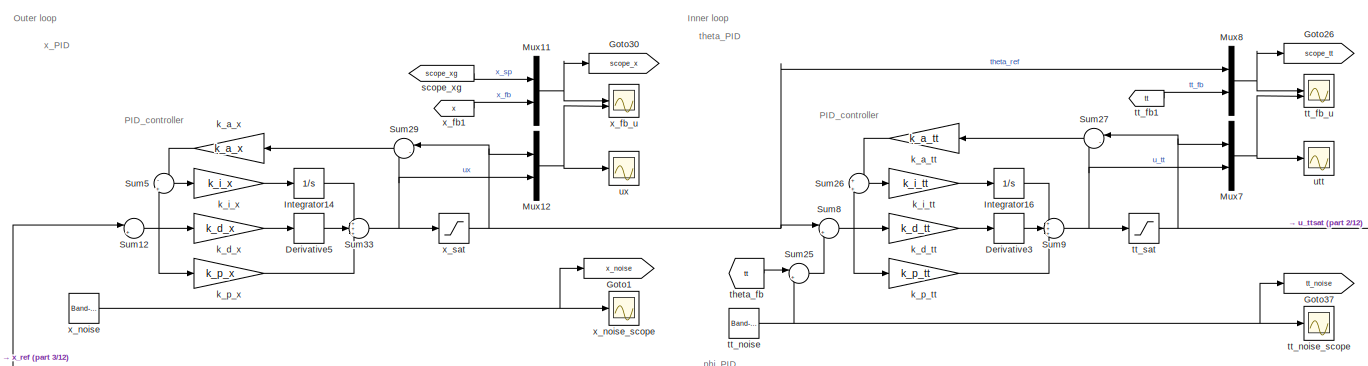
[diagram: root canvas - part 1/12, top center region]
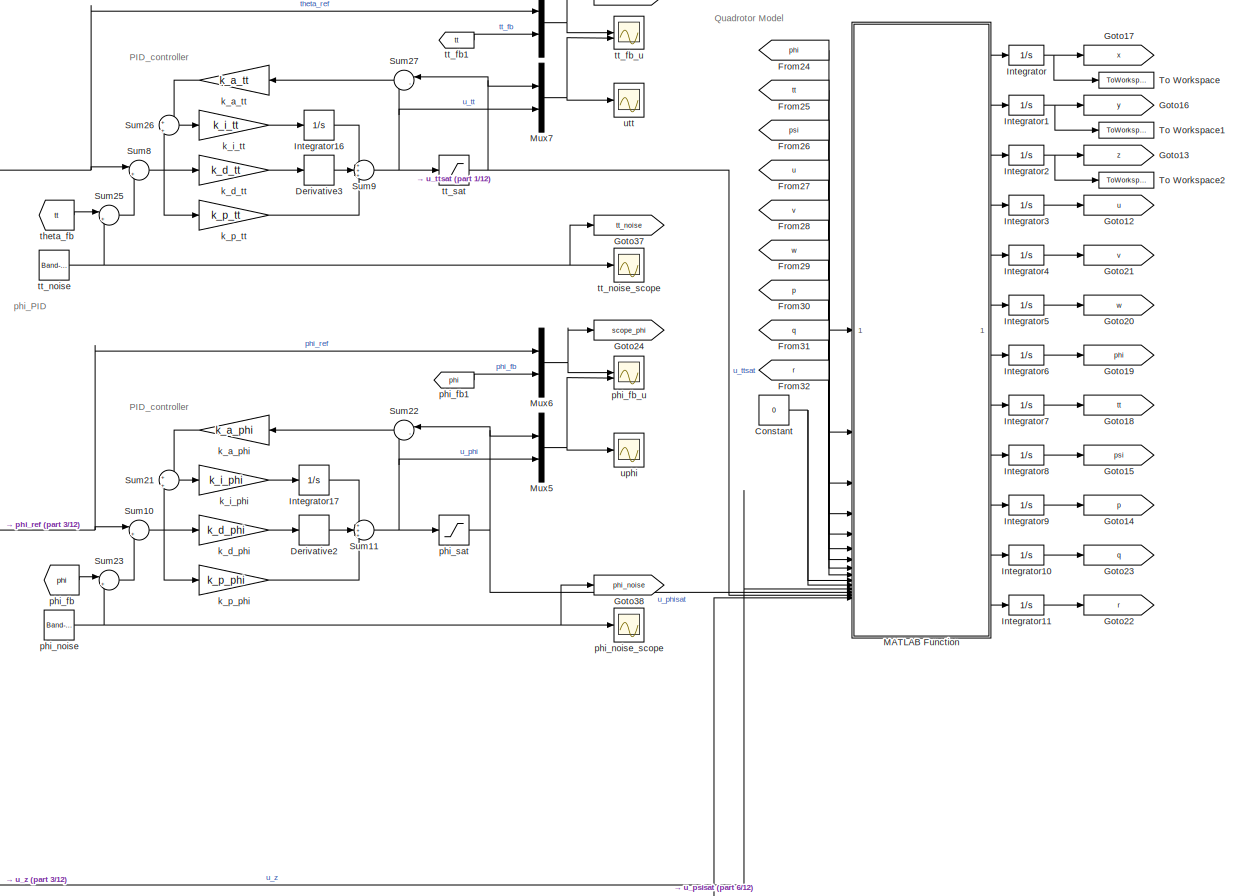
[diagram: root canvas - part 2/12, top center region]
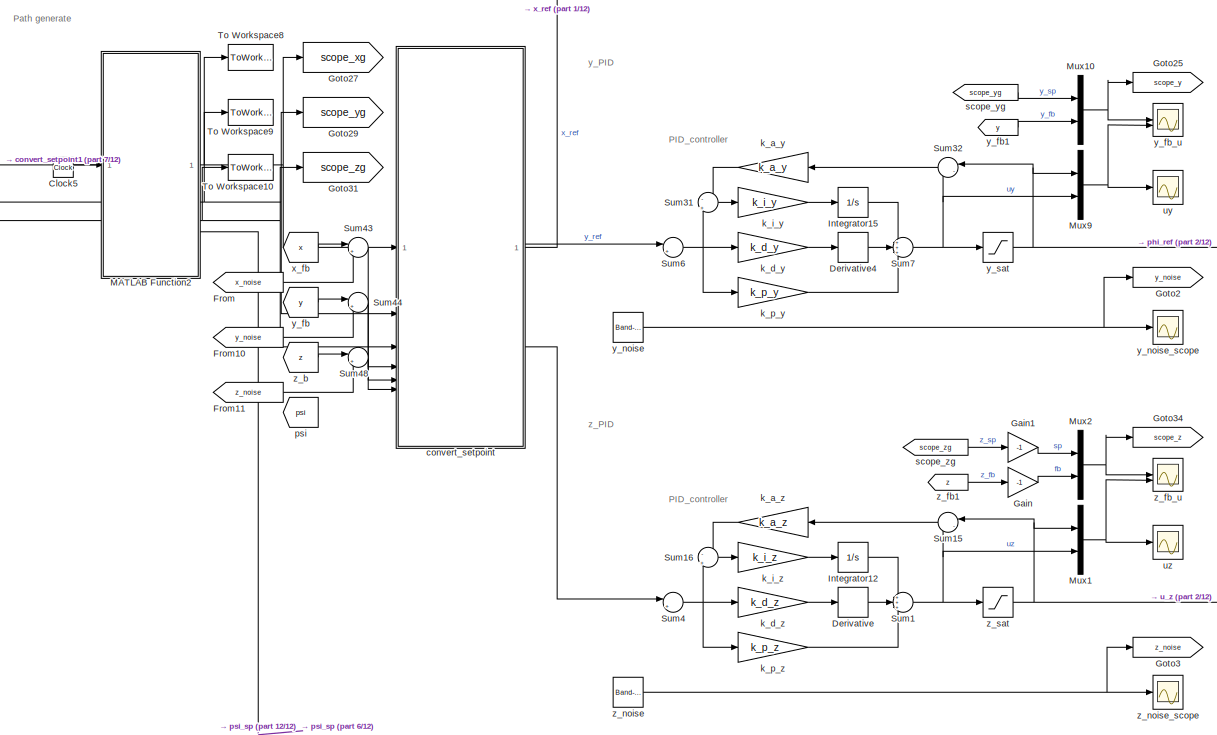
[diagram: root canvas - part 3/12, top left region]
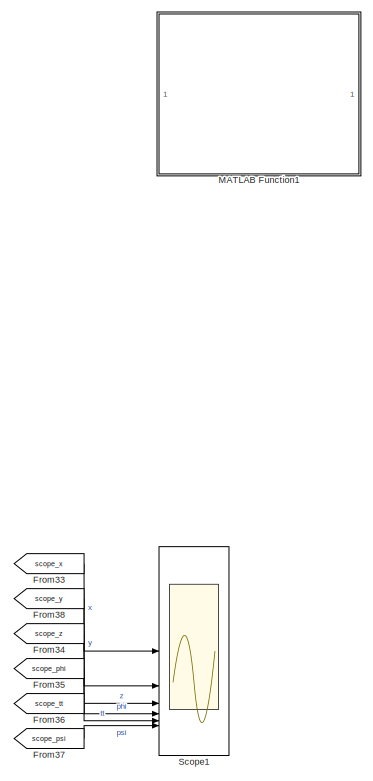
[diagram: root canvas - part 4/12, top right region]
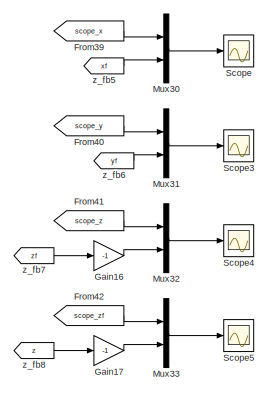
[diagram: root canvas - part 5/12, middle right region]
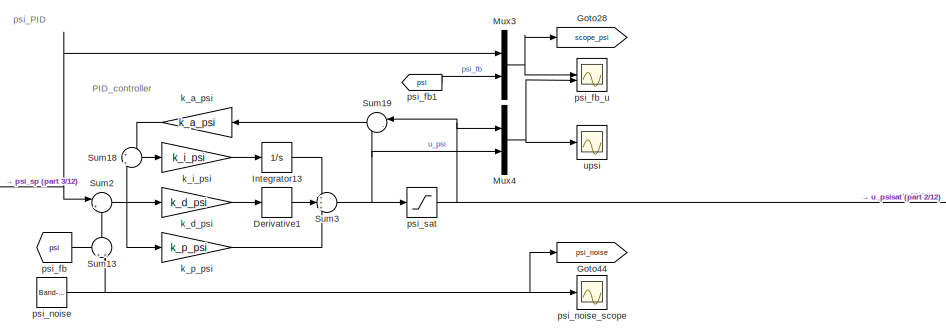
[diagram: root canvas - part 6/12, central region]
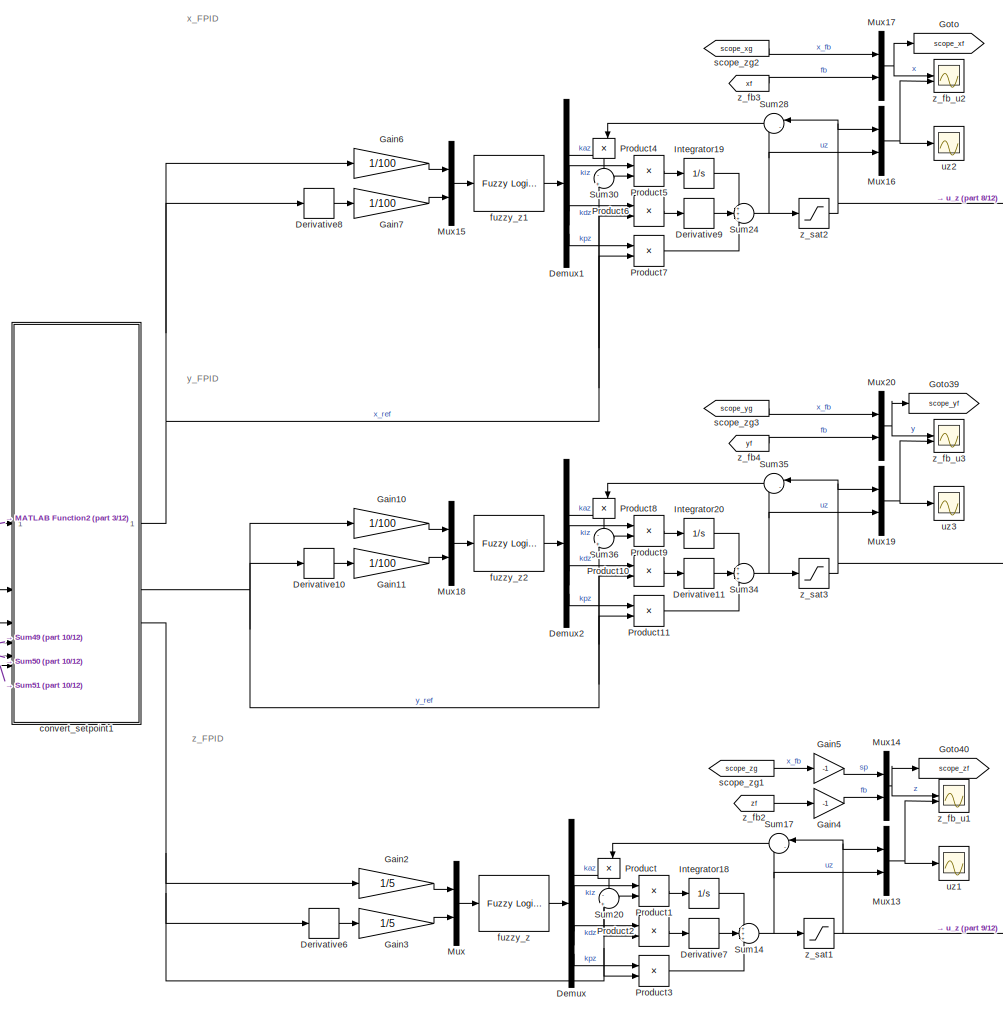
[diagram: root canvas - part 7/12, bottom center region]
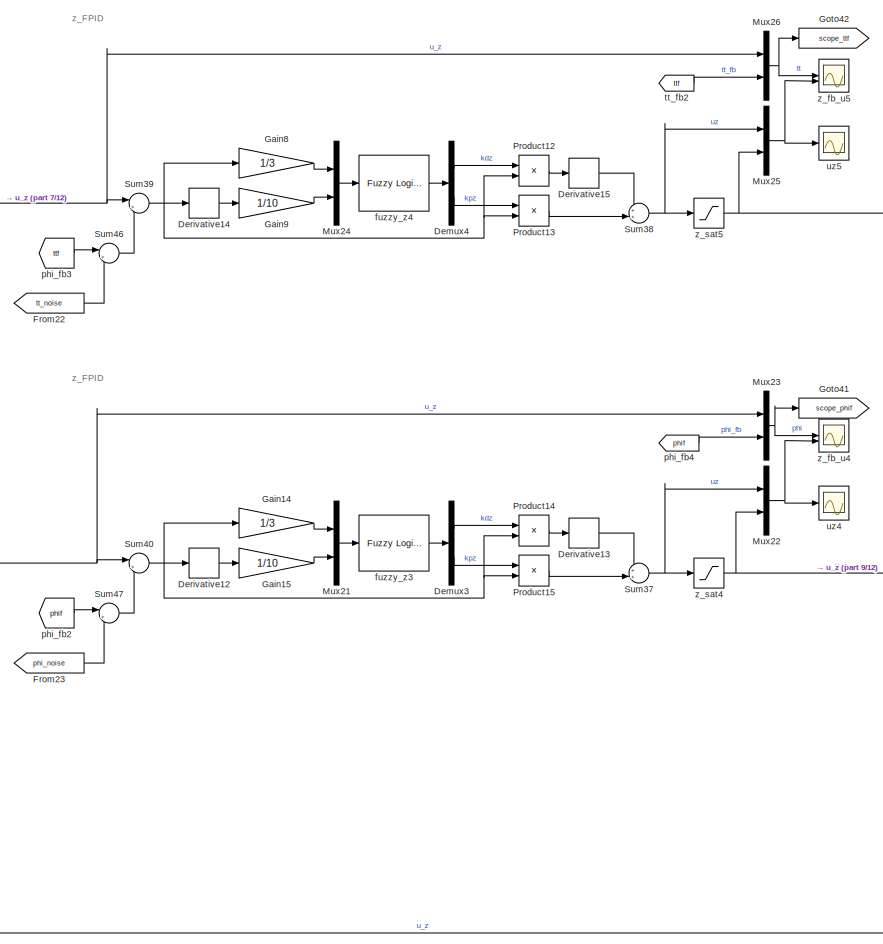
[diagram: root canvas - part 8/12, bottom center region]
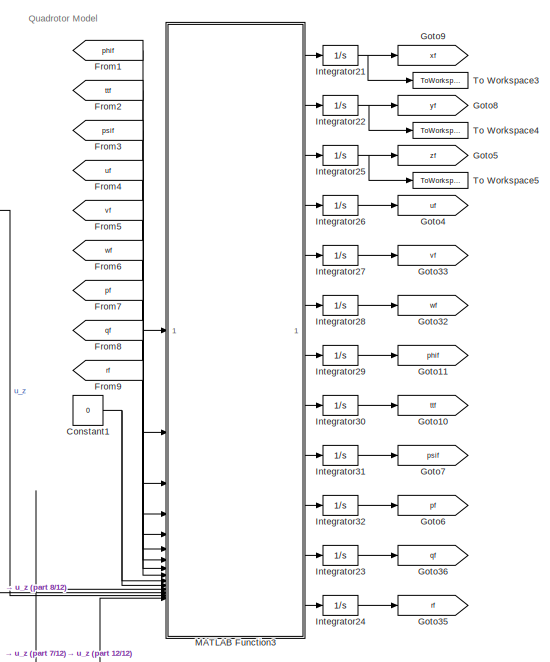
[diagram: root canvas - part 9/12, middle right region]
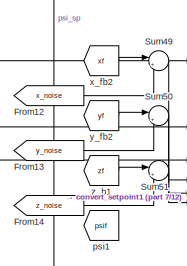
[diagram: root canvas - part 10/12, bottom left region]
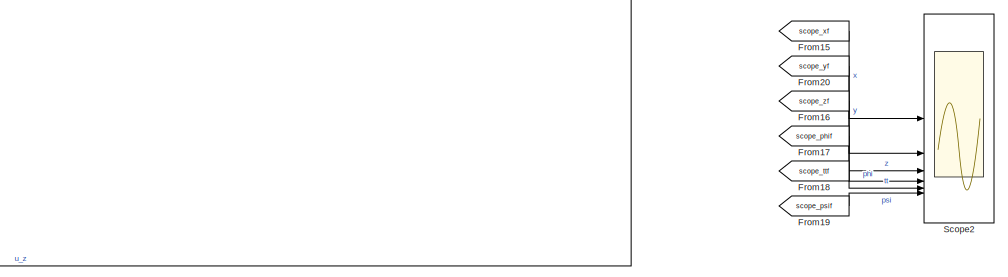
[diagram: root canvas - part 11/12, bottom right region]
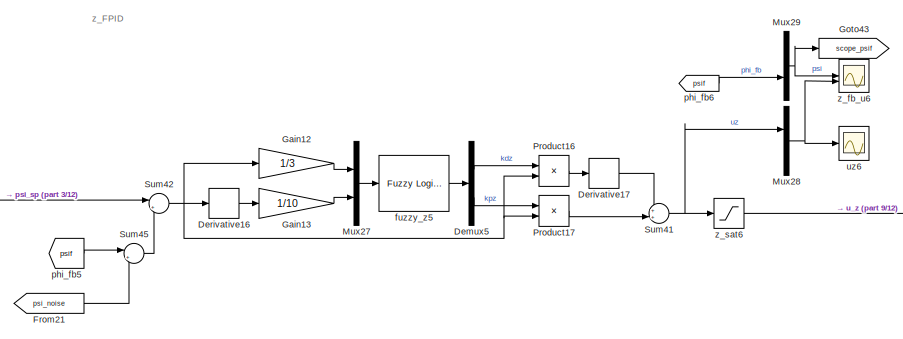
[diagram: root canvas - part 12/12, bottom center region]
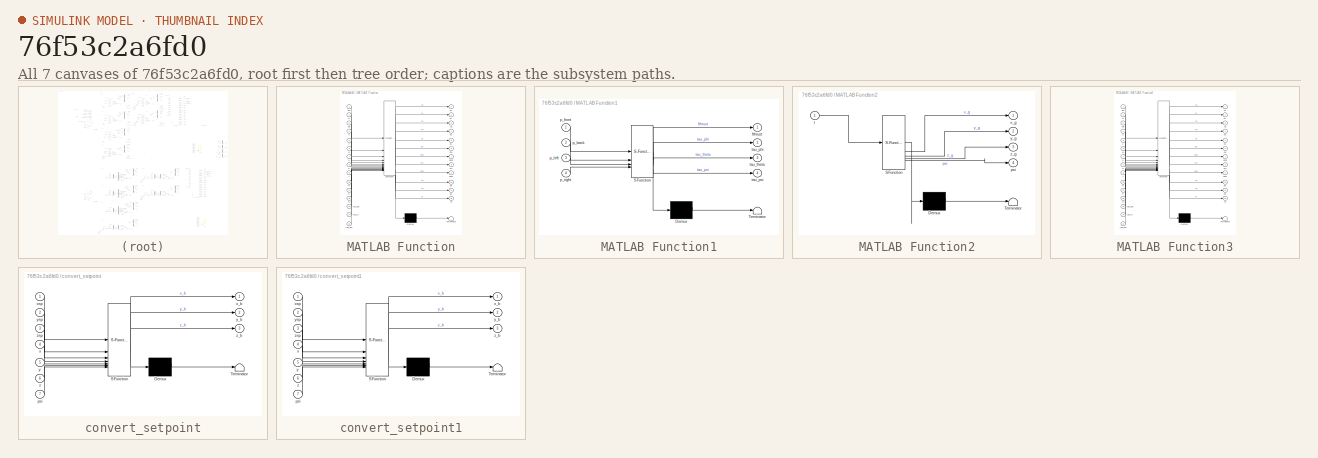
[diagram: thumbnail index - all 7 canvases of the model, root first then tree order]
MODEL slx_76f53c2a6fd0
KIND model
CONFIG AbsTol = auto
CONFIG EnableMultiTasking = off
CONFIG FixedStep = 1e-2
CONFIG InitFcn = close all;\n% % % z\nk_p_z = -4;\nk_i_z = -.5;\nk_d_z = -8;\nk_a_z = -2;\n% % \n% % % psi\nk_p_psi = 5.84;\nk_i_psi = 0;\nk_d_psi = .836;\nk_a_psi = 0;\n% % \n% % phi\nk_p_phi = 1;\nk_d_phi = 0.32;\nk_i_phi = 0;\nk_a_phi = 0;\n%\n% % tt\nk_p_tt = 1;\nk_d_tt = .302;\nk_i_tt = 0;\nk_a_tt = 0;\n%\n% % x\nk_p_x = -5.99;\nk_i_x = -2.8;\nk_d_x = -1.244;\nk_a_x = -7.94;\n%\n% % y\nk_p_y = 5.99;\nk_i_y = 2.8;\nk_d_y = 1.244;\nk_a_y = 7.94;
CONFIG MaxStep = auto
CONFIG MinStep = auto
CONFIG RelTol = 1e-3
CONFIG SampleTimeConstraint = Unconstrained
CONFIG SolverName = FixedStepAuto
CONFIG StartTime = 0.0
CONFIG StopFcn = plot3(x1,y1,-z1,['g','-.'],x_g,y_g,-z_g,['r','-'],x,y,-z,['b','--'],'LineWidth',1.5);\nxlabel('x');\nylabel('y');\nzlabel('z');\ngrid on;\nfigure;\nplot(x1,y1,['g','-.'],x_g,y_g,['r','-'],x,y,['b','--'],'LineWidth',1.5);\nxlabel('x');\nylabel('y');\ngrid on;
CONFIG StopTime = 250
BLOCK [Clock] Clock5
BLOCK [Constant] Constant
  Value = 0
BLOCK [Constant] Constant1
  Value = 0
BLOCK [Demux] Demux
BLOCK [Demux] Demux1
BLOCK [Demux] Demux2
BLOCK [Demux] Demux3
  Outputs = 2
BLOCK [Demux] Demux4
  Outputs = 2
BLOCK [Demux] Demux5
  Outputs = 2
BLOCK [Derivative] Derivative
BLOCK [Derivative] Derivative1
BLOCK [Derivative] Derivative10
BLOCK [Derivative] Derivative11
BLOCK [Derivative] Derivative12
BLOCK [Derivative] Derivative13
BLOCK [Derivative] Derivative14
BLOCK [Derivative] Derivative15
BLOCK [Derivative] Derivative16
BLOCK [Derivative] Derivative17
BLOCK [Derivative] Derivative2
BLOCK [Derivative] Derivative3
BLOCK [Derivative] Derivative4
BLOCK [Derivative] Derivative5
BLOCK [Derivative] Derivative6
BLOCK [Derivative] Derivative7
BLOCK [Derivative] Derivative8
BLOCK [Derivative] Derivative9
BLOCK [From] From
  GotoTag = x_noise
BLOCK [From] From1
  GotoTag = phif
BLOCK [From] From10
  GotoTag = y_noise
BLOCK [From] From11
  GotoTag = z_noise
BLOCK [From] From12
  GotoTag = x_noise
BLOCK [From] From13
  GotoTag = y_noise
BLOCK [From] From14
  GotoTag = z_noise
BLOCK [From] From15
  GotoTag = scope_xf
BLOCK [From] From16
  GotoTag = scope_zf
BLOCK [From] From17
  GotoTag = scope_phif
BLOCK [From] From18
  GotoTag = scope_ttf
BLOCK [From] From19
  GotoTag = scope_psif
BLOCK [From] From2
  GotoTag = ttf
BLOCK [From] From20
  GotoTag = scope_yf
BLOCK [From] From21
  GotoTag = psi_noise
BLOCK [From] From22
  GotoTag = tt_noise
BLOCK [From] From23
  GotoTag = phi_noise
BLOCK [From] From24
  GotoTag = phi
BLOCK [From] From25
  GotoTag = tt
BLOCK [From] From26
  GotoTag = psi
BLOCK [From] From27
  GotoTag = u
BLOCK [From] From28
  GotoTag = v
BLOCK [From] From29
  GotoTag = w
BLOCK [From] From3
  GotoTag = psif
BLOCK [From] From30
  GotoTag = p
BLOCK [From] From31
  GotoTag = q
BLOCK [From] From32
  GotoTag = r
BLOCK [From] From33
  GotoTag = scope_x
BLOCK [From] From34
  GotoTag = scope_z
BLOCK [From] From35
  GotoTag = scope_phi
BLOCK [From] From36
  GotoTag = scope_tt
BLOCK [From] From37
  GotoTag = scope_psi
BLOCK [From] From38
  GotoTag = scope_y
BLOCK [From] From39
  GotoTag = scope_x
BLOCK [From] From4
  GotoTag = uf
BLOCK [From] From40
  GotoTag = scope_y
BLOCK [From] From41
  GotoTag = scope_z
BLOCK [From] From42
  GotoTag = scope_zf
BLOCK [From] From5
  GotoTag = vf
BLOCK [From] From6
  GotoTag = wf
BLOCK [From] From7
  GotoTag = pf
BLOCK [From] From8
  GotoTag = qf
BLOCK [From] From9
  GotoTag = rf
BLOCK [Gain] Gain
  Gain = -1
BLOCK [Gain] Gain1
  Gain = -1
BLOCK [Gain] Gain10
  Gain = 1/100
BLOCK [Gain] Gain11
  Gain = 1/100
BLOCK [Gain] Gain12
  Gain = 1/3
BLOCK [Gain] Gain13
  Gain = 1/10
BLOCK [Gain] Gain14
  Gain = 1/3
BLOCK [Gain] Gain15
  Gain = 1/10
BLOCK [Gain] Gain16
  Gain = -1
BLOCK [Gain] Gain17
  Gain = -1
BLOCK [Gain] Gain2
  Gain = 1/5
BLOCK [Gain] Gain3
  Gain = 1/5
BLOCK [Gain] Gain4
  Gain = -1
BLOCK [Gain] Gain5
  Gain = -1
BLOCK [Gain] Gain6
  Gain = 1/100
BLOCK [Gain] Gain7
  Gain = 1/100
BLOCK [Gain] Gain8
  Gain = 1/3
BLOCK [Gain] Gain9
  Gain = 1/10
BLOCK [Goto] Goto
  GotoTag = scope_xf
BLOCK [Goto] Goto1
  GotoTag = x_noise
BLOCK [Goto] Goto10
  GotoTag = ttf
BLOCK [Goto] Goto11
  GotoTag = phif
BLOCK [Goto] Goto12
  GotoTag = u
BLOCK [Goto] Goto13
  GotoTag = z
BLOCK [Goto] Goto14
  GotoTag = p
BLOCK [Goto] Goto15
  GotoTag = psi
BLOCK [Goto] Goto16
  GotoTag = y
BLOCK [Goto] Goto17
  GotoTag = x
BLOCK [Goto] Goto18
  GotoTag = tt
BLOCK [Goto] Goto19
  GotoTag = phi
BLOCK [Goto] Goto2
  GotoTag = y_noise
BLOCK [Goto] Goto20
  GotoTag = w
BLOCK [Goto] Goto21
  GotoTag = v
BLOCK [Goto] Goto22
  GotoTag = r
BLOCK [Goto] Goto23
  GotoTag = q
BLOCK [Goto] Goto24
  GotoTag = scope_phi
BLOCK [Goto] Goto25
  GotoTag = scope_y
BLOCK [Goto] Goto26
  GotoTag = scope_tt
BLOCK [Goto] Goto27
  GotoTag = scope_xg
BLOCK [Goto] Goto28
  GotoTag = scope_psi
BLOCK [Goto] Goto29
  GotoTag = scope_yg
BLOCK [Goto] Goto3
  GotoTag = z_noise
BLOCK [Goto] Goto30
  GotoTag = scope_x
BLOCK [Goto] Goto31
  GotoTag = scope_zg
BLOCK [Goto] Goto32
  GotoTag = wf
BLOCK [Goto] Goto33
  GotoTag = vf
BLOCK [Goto] Goto34
  GotoTag = scope_z
BLOCK [Goto] Goto35
  GotoTag = rf
BLOCK [Goto] Goto36
  GotoTag = qf
BLOCK [Goto] Goto37
  GotoTag = tt_noise
BLOCK [Goto] Goto38
  GotoTag = phi_noise
BLOCK [Goto] Goto39
  GotoTag = scope_yf
BLOCK [Goto] Goto4
  GotoTag = uf
BLOCK [Goto] Goto40
  GotoTag = scope_zf
BLOCK [Goto] Goto41
  GotoTag = scope_phif
BLOCK [Goto] Goto42
  GotoTag = scope_ttf
BLOCK [Goto] Goto43
  GotoTag = scope_psif
BLOCK [Goto] Goto44
  GotoTag = psi_noise
BLOCK [Goto] Goto5
  GotoTag = zf
BLOCK [Goto] Goto6
  GotoTag = pf
BLOCK [Goto] Goto7
  GotoTag = psif
BLOCK [Goto] Goto8
  GotoTag = yf
BLOCK [Goto] Goto9
  GotoTag = xf
BLOCK [Integrator] Integrator
  LimitOutput = on
  LowerSaturationLimit = -10000
  UpperSaturationLimit = 10000
BLOCK [Integrator] Integrator1
  LimitOutput = on
  LowerSaturationLimit = -10000
  UpperSaturationLimit = 10000
BLOCK [Integrator] Integrator10
  LimitOutput = on
  LowerSaturationLimit = -100
  UpperSaturationLimit = 100
BLOCK [Integrator] Integrator11
  LimitOutput = on
  LowerSaturationLimit = -100
  UpperSaturationLimit = 100
BLOCK [Integrator] Integrator12
  LimitOutput = on
  LowerSaturationLimit = -1000
  UpperSaturationLimit = 1000
BLOCK [Integrator] Integrator13
  LimitOutput = on
  LowerSaturationLimit = -1000
  UpperSaturationLimit = 1000
BLOCK [Integrator] Integrator14
  LimitOutput = on
  LowerSaturationLimit = -1000
  UpperSaturationLimit = 1000
BLOCK [Integrator] Integrator15
  LimitOutput = on
  LowerSaturationLimit = -1000
  UpperSaturationLimit = 1000
BLOCK [Integrator] Integrator16
BLOCK [Integrator] Integrator17
  LimitOutput = on
  LowerSaturationLimit = -1000
  UpperSaturationLimit = 1000
BLOCK [Integrator] Integrator18
  LimitOutput = on
  LowerSaturationLimit = -1000
  UpperSaturationLimit = 1000
BLOCK [Integrator] Integrator19
  LimitOutput = on
  LowerSaturationLimit = -1000
  UpperSaturationLimit = 1000
BLOCK [Integrator] Integrator2
  LimitOutput = on
  LowerSaturationLimit = -1000
  UpperSaturationLimit = 0
BLOCK [Integrator] Integrator20
  LimitOutput = on
  LowerSaturationLimit = -1000
  UpperSaturationLimit = 1000
BLOCK [Integrator] Integrator21
  LimitOutput = on
  LowerSaturationLimit = -10000
  UpperSaturationLimit = 10000
BLOCK [Integrator] Integrator22
  LimitOutput = on
  LowerSaturationLimit = -10000
  UpperSaturationLimit = 10000
BLOCK [Integrator] Integrator23
  LimitOutput = on
  LowerSaturationLimit = -100
  UpperSaturationLimit = 100
BLOCK [Integrator] Integrator24
  LimitOutput = on
  LowerSaturationLimit = -100
  UpperSaturationLimit = 100
BLOCK [Integrator] Integrator25
  LimitOutput = on
  LowerSaturationLimit = -1000
  UpperSaturationLimit = 0
BLOCK [Integrator] Integrator26
  LimitOutput = on
  LowerSaturationLimit = -10000
  UpperSaturationLimit = 10000
BLOCK [Integrator] Integrator27
  LimitOutput = on
  LowerSaturationLimit = -10000
  UpperSaturationLimit = 10000
BLOCK [Integrator] Integrator28
  LimitOutput = on
  LowerSaturationLimit = -10000
  UpperSaturationLimit = 10000
BLOCK [Integrator] Integrator29
  LimitOutput = on
  LowerSaturationLimit = -1000
  UpperSaturationLimit = 1000
BLOCK [Integrator] Integrator3
  LimitOutput = on
  LowerSaturationLimit = -10000
  UpperSaturationLimit = 10000
BLOCK [Integrator] Integrator30
  LimitOutput = on
  LowerSaturationLimit = -1000
  UpperSaturationLimit = 1000
BLOCK [Integrator] Integrator31
  LimitOutput = on
  LowerSaturationLimit = -100
  UpperSaturationLimit = 100
BLOCK [Integrator] Integrator32
  LimitOutput = on
  LowerSaturationLimit = -100
  UpperSaturationLimit = 100
BLOCK [Integrator] Integrator4
  LimitOutput = on
  LowerSaturationLimit = -10000
  UpperSaturationLimit = 10000
BLOCK [Integrator] Integrator5
  LimitOutput = on
  LowerSaturationLimit = -10000
  UpperSaturationLimit = 10000
BLOCK [Integrator] Integrator6
  LimitOutput = on
  LowerSaturationLimit = -1000
  UpperSaturationLimit = 1000
BLOCK [Integrator] Integrator7
  LimitOutput = on
  LowerSaturationLimit = -1000
  UpperSaturationLimit = 1000
BLOCK [Integrator] Integrator8
  LimitOutput = on
  LowerSaturationLimit = -100
  UpperSaturationLimit = 100
BLOCK [Integrator] Integrator9
  LimitOutput = on
  LowerSaturationLimit = -100
  UpperSaturationLimit = 100
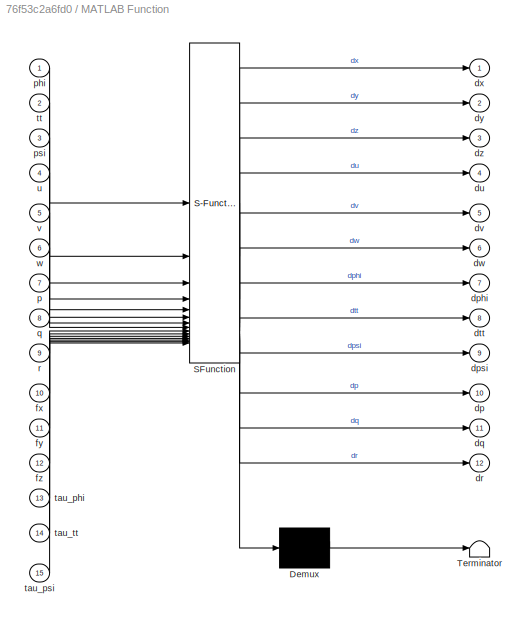
BLOCK [SubSystem] MATLAB Function
  ErrorFcn = Stateflow.Translate.translate
  LibrarySourceBlock = simulink/User-Defined\nFunctions/MATLAB Function
  PermitHierarchicalResolution = ExplicitOnly
  SFBlockType = MATLAB Function
  TreatAsAtomicUnit = on
BLOCK [Demux] MATLAB Function/ Demux 
  Outputs = 1
BLOCK [S-Function] MATLAB Function/ SFunction 
  EnableBusSupport = on
  FunctionName = sf_sfun
  PortCounts = [15 13]
  SFcnIsStateOwnerBlock = off
  SFunctionDeploymentMode = off
  Tag = Stateflow S-Function 2
BLOCK [Terminator] MATLAB Function/ Terminator 
BLOCK [Outport] MATLAB Function/dp
  Port = 10
BLOCK [Outport] MATLAB Function/dphi
  Port = 7
BLOCK [Outport] MATLAB Function/dpsi
  Port = 9
BLOCK [Outport] MATLAB Function/dq
  Port = 11
BLOCK [Outport] MATLAB Function/dr
  Port = 12
BLOCK [Outport] MATLAB Function/dtt
  Port = 8
BLOCK [Outport] MATLAB Function/du
  Port = 4
BLOCK [Outport] MATLAB Function/dv
  Port = 5
BLOCK [Outport] MATLAB Function/dw
  Port = 6
BLOCK [Outport] MATLAB Function/dx
BLOCK [Outport] MATLAB Function/dy
  Port = 2
BLOCK [Outport] MATLAB Function/dz
  Port = 3
BLOCK [Inport] MATLAB Function/fx
  Port = 10
BLOCK [Inport] MATLAB Function/fy
  Port = 11
BLOCK [Inport] MATLAB Function/fz
  Port = 12
BLOCK [Inport] MATLAB Function/p
  Port = 7
BLOCK [Inport] MATLAB Function/phi
BLOCK [Inport] MATLAB Function/psi
  Port = 3
BLOCK [Inport] MATLAB Function/q
  Port = 8
BLOCK [Inport] MATLAB Function/r
  Port = 9
BLOCK [Inport] MATLAB Function/tau_phi
  Port = 13
BLOCK [Inport] MATLAB Function/tau_psi
  Port = 15
BLOCK [Inport] MATLAB Function/tau_tt
  Port = 14
BLOCK [Inport] MATLAB Function/tt
  Port = 2
BLOCK [Inport] MATLAB Function/u
  Port = 4
BLOCK [Inport] MATLAB Function/v
  Port = 5
BLOCK [Inport] MATLAB Function/w
  Port = 6
BLOCK [SubSystem] MATLAB Function1
  Commented = on
  ErrorFcn = Stateflow.Translate.translate
  PermitHierarchicalResolution = ExplicitOnly
  SFBlockType = MATLAB Function
  TreatAsAtomicUnit = on
BLOCK [Demux] MATLAB Function1/ Demux 
  Outputs = 1
BLOCK [S-Function] MATLAB Function1/ SFunction 
  EnableBusSupport = on
  FunctionName = sf_sfun
  PortCounts = [4 5]
  SFcnIsStateOwnerBlock = off
  SFunctionDeploymentMode = off
  Tag = Stateflow S-Function 1
BLOCK [Terminator] MATLAB Function1/ Terminator 
BLOCK [Outport] MATLAB Function1/fthrust
BLOCK [Inport] MATLAB Function1/p_back
  Port = 2
BLOCK [Inport] MATLAB Function1/p_front
BLOCK [Inport] MATLAB Function1/p_left
  Port = 3
BLOCK [Inport] MATLAB Function1/p_right
  Port = 4
BLOCK [Outport] MATLAB Function1/tau_phi
  Port = 2
BLOCK [Outport] MATLAB Function1/tau_psi
  Port = 4
BLOCK [Outport] MATLAB Function1/tau_theta
  Port = 3
BLOCK [SubSystem] MATLAB Function2
  ErrorFcn = Stateflow.Translate.translate
  PermitHierarchicalResolution = ExplicitOnly
  SFBlockType = MATLAB Function
  TreatAsAtomicUnit = on
BLOCK [Demux] MATLAB Function2/ Demux 
  Outputs = 1
BLOCK [S-Function] MATLAB Function2/ SFunction 
  EnableBusSupport = on
  FunctionName = sf_sfun
  PortCounts = [1 5]
  SFcnIsStateOwnerBlock = off
  SFunctionDeploymentMode = off
  Tag = Stateflow S-Function 3
BLOCK [Terminator] MATLAB Function2/ Terminator 
BLOCK [Outport] MATLAB Function2/psi
  Port = 4
BLOCK [Inport] MATLAB Function2/t
BLOCK [Outport] MATLAB Function2/x_g
BLOCK [Outport] MATLAB Function2/y_g
  Port = 2
BLOCK [Outport] MATLAB Function2/z_g
  Port = 3
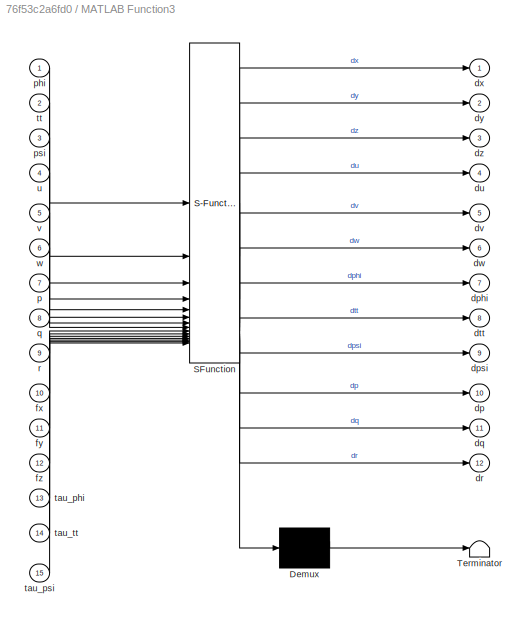
BLOCK [SubSystem] MATLAB Function3
  ErrorFcn = Stateflow.Translate.translate
  LibrarySourceBlock = simulink/User-Defined\nFunctions/MATLAB Function
  PermitHierarchicalResolution = ExplicitOnly
  SFBlockType = MATLAB Function
  TreatAsAtomicUnit = on
BLOCK [Demux] MATLAB Function3/ Demux 
  Outputs = 1
BLOCK [S-Function] MATLAB Function3/ SFunction 
  EnableBusSupport = on
  FunctionName = sf_sfun
  PortCounts = [15 13]
  SFcnIsStateOwnerBlock = off
  SFunctionDeploymentMode = off
  Tag = Stateflow S-Function 5
BLOCK [Terminator] MATLAB Function3/ Terminator 
BLOCK [Outport] MATLAB Function3/dp
  Port = 10
BLOCK [Outport] MATLAB Function3/dphi
  Port = 7
BLOCK [Outport] MATLAB Function3/dpsi
  Port = 9
BLOCK [Outport] MATLAB Function3/dq
  Port = 11
BLOCK [Outport] MATLAB Function3/dr
  Port = 12
BLOCK [Outport] MATLAB Function3/dtt
  Port = 8
BLOCK [Outport] MATLAB Function3/du
  Port = 4
BLOCK [Outport] MATLAB Function3/dv
  Port = 5
BLOCK [Outport] MATLAB Function3/dw
  Port = 6
BLOCK [Outport] MATLAB Function3/dx
BLOCK [Outport] MATLAB Function3/dy
  Port = 2
BLOCK [Outport] MATLAB Function3/dz
  Port = 3
BLOCK [Inport] MATLAB Function3/fx
  Port = 10
BLOCK [Inport] MATLAB Function3/fy
  Port = 11
BLOCK [Inport] MATLAB Function3/fz
  Port = 12
BLOCK [Inport] MATLAB Function3/p
  Port = 7
BLOCK [Inport] MATLAB Function3/phi
BLOCK [Inport] MATLAB Function3/psi
  Port = 3
BLOCK [Inport] MATLAB Function3/q
  Port = 8
BLOCK [Inport] MATLAB Function3/r
  Port = 9
BLOCK [Inport] MATLAB Function3/tau_phi
  Port = 13
BLOCK [Inport] MATLAB Function3/tau_psi
  Port = 15
BLOCK [Inport] MATLAB Function3/tau_tt
  Port = 14
BLOCK [Inport] MATLAB Function3/tt
  Port = 2
BLOCK [Inport] MATLAB Function3/u
  Port = 4
BLOCK [Inport] MATLAB Function3/v
  Port = 5
BLOCK [Inport] MATLAB Function3/w
  Port = 6
BLOCK [Mux] Mux
  DisplayOption = bar
  Inputs = 2
BLOCK [Mux] Mux1
  DisplayOption = bar
  Inputs = 2
  NameLocation = top
BLOCK [Mux] Mux10
  DisplayOption = bar
  Inputs = 2
  NameLocation = top
BLOCK [Mux] Mux11
  DisplayOption = bar
  Inputs = 2
  NameLocation = top
BLOCK [Mux] Mux12
  DisplayOption = bar
  Inputs = 2
  NameLocation = top
BLOCK [Mux] Mux13
  DisplayOption = bar
  Inputs = 2
  NameLocation = top
BLOCK [Mux] Mux14
  DisplayOption = bar
  Inputs = 2
  NameLocation = top
BLOCK [Mux] Mux15
  DisplayOption = bar
  Inputs = 2
BLOCK [Mux] Mux16
  DisplayOption = bar
  Inputs = 2
  NameLocation = top
BLOCK [Mux] Mux17
  DisplayOption = bar
  Inputs = 2
  NameLocation = top
BLOCK [Mux] Mux18
  DisplayOption = bar
  Inputs = 2
BLOCK [Mux] Mux19
  DisplayOption = bar
  Inputs = 2
  NameLocation = top
BLOCK [Mux] Mux2
  DisplayOption = bar
  Inputs = 2
  NameLocation = top
BLOCK [Mux] Mux20
  DisplayOption = bar
  Inputs = 2
  NameLocation = top
BLOCK [Mux] Mux21
  DisplayOption = bar
  Inputs = 2
BLOCK [Mux] Mux22
  DisplayOption = bar
  Inputs = 2
  NameLocation = top
BLOCK [Mux] Mux23
  DisplayOption = bar
  Inputs = 2
  NameLocation = top
BLOCK [Mux] Mux24
  DisplayOption = bar
  Inputs = 2
BLOCK [Mux] Mux25
  DisplayOption = bar
  Inputs = 2
  NameLocation = top
BLOCK [Mux] Mux26
  DisplayOption = bar
  Inputs = 2
  NameLocation = top
BLOCK [Mux] Mux27
  DisplayOption = bar
  Inputs = 2
BLOCK [Mux] Mux28
  DisplayOption = bar
  Inputs = 2
  NameLocation = top
BLOCK [Mux] Mux29
  DisplayOption = bar
  Inputs = 2
  NameLocation = top
BLOCK [Mux] Mux3
  DisplayOption = bar
  Inputs = 2
  NameLocation = top
BLOCK [Mux] Mux30
  DisplayOption = bar
  Inputs = 2
  NameLocation = top
BLOCK [Mux] Mux31
  DisplayOption = bar
  Inputs = 2
  NameLocation = top
BLOCK [Mux] Mux32
  DisplayOption = bar
  Inputs = 2
  NameLocation = top
BLOCK [Mux] Mux33
  DisplayOption = bar
  Inputs = 2
  NameLocation = top
BLOCK [Mux] Mux4
  DisplayOption = bar
  Inputs = 2
  NameLocation = top
BLOCK [Mux] Mux5
  DisplayOption = bar
  Inputs = 2
  NameLocation = top
BLOCK [Mux] Mux6
  DisplayOption = bar
  Inputs = 2
  NameLocation = top
BLOCK [Mux] Mux7
  DisplayOption = bar
  Inputs = 2
  NameLocation = top
BLOCK [Mux] Mux8
  DisplayOption = bar
  Inputs = 2
  NameLocation = top
BLOCK [Mux] Mux9
  DisplayOption = bar
  Inputs = 2
  NameLocation = top
BLOCK [Product] Product
  NameLocation = left
BLOCK [Product] Product1
BLOCK [Product] Product10
BLOCK [Product] Product11
BLOCK [Product] Product12
BLOCK [Product] Product13
BLOCK [Product] Product14
BLOCK [Product] Product15
BLOCK [Product] Product16
BLOCK [Product] Product17
BLOCK [Product] Product2
BLOCK [Product] Product3
BLOCK [Product] Product4
  NameLocation = left
BLOCK [Product] Product5
BLOCK [Product] Product6
BLOCK [Product] Product7
BLOCK [Product] Product8
  NameLocation = left
BLOCK [Product] Product9
BLOCK [Scope] Scope
  Floating = off
  NumInputPorts = 1
  ScopeSpecificationString = Simulink.scopes.TimeScopeBlockCfg('CurrentConfiguration', extmgr.ConfigurationSet(extmgr.Configuration('Core','General UI',true,'FigureColor',[1 1 1]),extmgr.Configuration('Core','Source UI',true),extmgr.Configuration('Sources','WiredSimulink',true,'DataLoggingVariableName','ScopeData1'),extmgr.Configuration('Visuals','Time Domain',true,'SerializedDisplays',{struct('MinYLimReal','-1.55188','MaxYLi...<+2174ch>
BLOCK [Scope] Scope1
  Floating = off
  NumInputPorts = 6
  ScopeSpecificationString = Simulink.scopes.TimeScopeBlockCfg('CurrentConfiguration', extmgr.ConfigurationSet(extmgr.Configuration('Core','General UI',true,'FigureColor',[1 1 1]),extmgr.Configuration('Core','Source UI',true),extmgr.Configuration('Sources','WiredSimulink',true,'DataLoggingVariableName','ScopeData3'),extmgr.Configuration('Visuals','Time Domain',true,'SerializedDisplays',{struct('MinYLimReal','-1.55181','MaxYLi...<+6348ch>
BLOCK [Scope] Scope2
  Floating = off
  NumInputPorts = 6
  ScopeSpecificationString = Simulink.scopes.TimeScopeBlockCfg('CurrentConfiguration', extmgr.ConfigurationSet(extmgr.Configuration('Core','General UI',true,'FigureColor',[1 1 1]),extmgr.Configuration('Core','Source UI',true),extmgr.Configuration('Sources','WiredSimulink',true,'DataLoggingVariableName','ScopeData1'),extmgr.Configuration('Visuals','Time Domain',true,'SerializedDisplays',{struct('MinYLimReal','-1.54587','MaxYLi...<+6349ch>
BLOCK [Scope] Scope3
  Floating = off
  NumInputPorts = 1
  ScopeSpecificationString = Simulink.scopes.TimeScopeBlockCfg('CurrentConfiguration', extmgr.ConfigurationSet(extmgr.Configuration('Core','General UI',true,'FigureColor',[1 1 1]),extmgr.Configuration('Core','Source UI',true),extmgr.Configuration('Sources','WiredSimulink',true,'DataLoggingVariableName','ScopeData2'),extmgr.Configuration('Visuals','Time Domain',true,'SerializedDisplays',{struct('MinYLimReal','-1.70656','MaxYLi...<+2304ch>
BLOCK [Scope] Scope4
  Floating = off
  NumInputPorts = 1
  ScopeSpecificationString = Simulink.scopes.TimeScopeBlockCfg('CurrentConfiguration', extmgr.ConfigurationSet(extmgr.Configuration('Core','General UI',true,'FigureColor',[1 1 1]),extmgr.Configuration('Core','Source UI',true),extmgr.Configuration('Sources','WiredSimulink',true,'DataLoggingVariableName','ScopeData3'),extmgr.Configuration('Visuals','Time Domain',true,'SerializedDisplays',{struct('MinYLimReal','-2.13028','MaxYLi...<+2299ch>
BLOCK [Scope] Scope5
  Floating = off
  NumInputPorts = 1
  ScopeSpecificationString = Simulink.scopes.TimeScopeBlockCfg('CurrentConfiguration', extmgr.ConfigurationSet(extmgr.Configuration('Core','General UI',true,'FigureColor',[1 1 1]),extmgr.Configuration('Core','Source UI',true),extmgr.Configuration('Sources','WiredSimulink',true,'DataLoggingVariableName','ScopeData4'),extmgr.Configuration('Visuals','Time Domain',true,'SerializedDisplays',{struct('MinYLimReal','-2.13028','MaxYLi...<+2304ch>
BLOCK [Sum] Sum1
  Inputs = +++
BLOCK [Sum] Sum10
  Inputs = |+-
BLOCK [Sum] Sum11
  Inputs = +++
BLOCK [Sum] Sum12
  Inputs = |+-
BLOCK [Sum] Sum13
  Inputs = ++|
  NameLocation = right
BLOCK [Sum] Sum14
  Inputs = +++
BLOCK [Sum] Sum15
  Inputs = |-+
BLOCK [Sum] Sum16
  Inputs = -|+
BLOCK [Sum] Sum17
  Inputs = |-+
BLOCK [Sum] Sum18
  Inputs = +|+
BLOCK [Sum] Sum19
  Inputs = |-+
BLOCK [Sum] Sum2
  Inputs = |+-
BLOCK [Sum] Sum20
  Inputs = -|+
BLOCK [Sum] Sum21
  Inputs = +|+
BLOCK [Sum] Sum22
  Inputs = |-+
BLOCK [Sum] Sum23
  Inputs = |++
BLOCK [Sum] Sum24
  Inputs = +++
BLOCK [Sum] Sum25
  Inputs = |++
BLOCK [Sum] Sum26
  Inputs = +|+
BLOCK [Sum] Sum27
  Inputs = |-+
BLOCK [Sum] Sum28
  Inputs = |-+
BLOCK [Sum] Sum29
  Inputs = |-+
BLOCK [Sum] Sum3
  Inputs = +++
BLOCK [Sum] Sum30
  Inputs = -|+
BLOCK [Sum] Sum31
  Inputs = -|+
BLOCK [Sum] Sum32
  Inputs = |-+
BLOCK [Sum] Sum33
  Inputs = +++
BLOCK [Sum] Sum34
  Inputs = +++
BLOCK [Sum] Sum35
  Inputs = |-+
BLOCK [Sum] Sum36
  Inputs = -|+
BLOCK [Sum] Sum37
  Inputs = ++|
BLOCK [Sum] Sum38
  Inputs = ++|
BLOCK [Sum] Sum39
  Inputs = |+-
BLOCK [Sum] Sum4
  Inputs = |+-
BLOCK [Sum] Sum40
  Inputs = |+-
BLOCK [Sum] Sum41
  Inputs = ++|
BLOCK [Sum] Sum42
  Inputs = |+-
BLOCK [Sum] Sum43
  Inputs = |+-
BLOCK [Sum] Sum44
  Inputs = |+-
BLOCK [Sum] Sum45
  Inputs = |++
BLOCK [Sum] Sum46
  Inputs = |++
BLOCK [Sum] Sum47
  Inputs = |++
BLOCK [Sum] Sum48
  Inputs = |+-
BLOCK [Sum] Sum49
  Inputs = |+-
BLOCK [Sum] Sum5
  Inputs = -|+
BLOCK [Sum] Sum50
  Inputs = |+-
BLOCK [Sum] Sum51
  Inputs = |+-
BLOCK [Sum] Sum6
  Inputs = |+-
BLOCK [Sum] Sum7
  Inputs = +++
BLOCK [Sum] Sum8
  Inputs = |+-
BLOCK [Sum] Sum9
  Inputs = +++
BLOCK [ToWorkspace] To Workspace
  FixptAsFi = on
  MaxDataPoints = inf
  SampleTime = -1
  Save2DSignal = 2-D array (concatenate along first dimension)
  VariableName = x
BLOCK [ToWorkspace] To Workspace1
  FixptAsFi = on
  MaxDataPoints = inf
  SampleTime = -1
  Save2DSignal = 2-D array (concatenate along first dimension)
  VariableName = y
BLOCK [ToWorkspace] To Workspace10
  FixptAsFi = on
  MaxDataPoints = inf
  SampleTime = -1
  Save2DSignal = 2-D array (concatenate along first dimension)
  VariableName = z_g
BLOCK [ToWorkspace] To Workspace2
  FixptAsFi = on
  MaxDataPoints = inf
  SampleTime = -1
  Save2DSignal = 2-D array (concatenate along first dimension)
  VariableName = z
BLOCK [ToWorkspace] To Workspace3
  FixptAsFi = on
  MaxDataPoints = inf
  SampleTime = -1
  Save2DSignal = 2-D array (concatenate along first dimension)
  VariableName = x1
BLOCK [ToWorkspace] To Workspace4
  FixptAsFi = on
  MaxDataPoints = inf
  SampleTime = -1
  Save2DSignal = 2-D array (concatenate along first dimension)
  VariableName = y1
BLOCK [ToWorkspace] To Workspace5
  FixptAsFi = on
  MaxDataPoints = inf
  SampleTime = -1
  Save2DSignal = 2-D array (concatenate along first dimension)
  VariableName = z1
BLOCK [ToWorkspace] To Workspace8
  FixptAsFi = on
  MaxDataPoints = inf
  SampleTime = -1
  Save2DSignal = 2-D array (concatenate along first dimension)
  VariableName = x_g
BLOCK [ToWorkspace] To Workspace9
  FixptAsFi = on
  MaxDataPoints = inf
  SampleTime = -1
  Save2DSignal = 2-D array (concatenate along first dimension)
  VariableName = y_g
BLOCK [SubSystem] convert_setpoint
  ErrorFcn = Stateflow.Translate.translate
  PermitHierarchicalResolution = ExplicitOnly
  SFBlockType = MATLAB Function
  TreatAsAtomicUnit = on
BLOCK [Demux] convert_setpoint/ Demux 
  Outputs = 1
BLOCK [S-Function] convert_setpoint/ SFunction 
  EnableBusSupport = on
  FunctionName = sf_sfun
  PortCounts = [7 4]
  SFcnIsStateOwnerBlock = off
  SFunctionDeploymentMode = off
  Tag = Stateflow S-Function 4
BLOCK [Terminator] convert_setpoint/ Terminator 
BLOCK [Inport] convert_setpoint/psi
  Port = 7
BLOCK [Inport] convert_setpoint/x
  Port = 4
BLOCK [Outport] convert_setpoint/x_b
BLOCK [Inport] convert_setpoint/xsp
BLOCK [Inport] convert_setpoint/y
  Port = 5
BLOCK [Outport] convert_setpoint/y_b
  Port = 2
BLOCK [Inport] convert_setpoint/ysp
  Port = 2
BLOCK [Inport] convert_setpoint/z
  Port = 6
BLOCK [Outport] convert_setpoint/z_b
  Port = 3
BLOCK [Inport] convert_setpoint/zsp
  Port = 3
BLOCK [SubSystem] convert_setpoint1
  ErrorFcn = Stateflow.Translate.translate
  PermitHierarchicalResolution = ExplicitOnly
  SFBlockType = MATLAB Function
  TreatAsAtomicUnit = on
BLOCK [Demux] convert_setpoint1/ Demux 
  Outputs = 1
BLOCK [S-Function] convert_setpoint1/ SFunction 
  EnableBusSupport = on
  FunctionName = sf_sfun
  PortCounts = [7 4]
  SFcnIsStateOwnerBlock = off
  SFunctionDeploymentMode = off
  Tag = Stateflow S-Function 6
BLOCK [Terminator] convert_setpoint1/ Terminator 
BLOCK [Inport] convert_setpoint1/psi
  Port = 7
BLOCK [Inport] convert_setpoint1/x
  Port = 4
BLOCK [Outport] convert_setpoint1/x_b
BLOCK [Inport] convert_setpoint1/xsp
BLOCK [Inport] convert_setpoint1/y
  Port = 5
BLOCK [Outport] convert_setpoint1/y_b
  Port = 2
BLOCK [Inport] convert_setpoint1/ysp
  Port = 2
BLOCK [Inport] convert_setpoint1/z
  Port = 6
BLOCK [Outport] convert_setpoint1/z_b
  Port = 3
BLOCK [Inport] convert_setpoint1/zsp
  Port = 3
BLOCK [Reference] fuzzy_z  REF=fuzblock/Fuzzy Logic   (lib defined in mdl_858b3b3e7478)
Controller
  SourceBlock = fuzblock/Fuzzy Logic \nController
  SourceType = Fuzzy Inference System
BLOCK [Reference] fuzzy_z1  REF=fuzblock/Fuzzy Logic   (lib defined in mdl_858b3b3e7478)
Controller
  SourceBlock = fuzblock/Fuzzy Logic \nController
  SourceType = Fuzzy Inference System
BLOCK [Reference] fuzzy_z2  REF=fuzblock/Fuzzy Logic   (lib defined in mdl_858b3b3e7478)
Controller
  SourceBlock = fuzblock/Fuzzy Logic \nController
  SourceType = Fuzzy Inference System
BLOCK [Reference] fuzzy_z3  REF=fuzblock/Fuzzy Logic   (lib defined in mdl_858b3b3e7478)
Controller
  SourceBlock = fuzblock/Fuzzy Logic \nController
  SourceType = Fuzzy Inference System
BLOCK [Reference] fuzzy_z4  REF=fuzblock/Fuzzy Logic   (lib defined in mdl_858b3b3e7478)
Controller
  SourceBlock = fuzblock/Fuzzy Logic \nController
  SourceType = Fuzzy Inference System
BLOCK [Reference] fuzzy_z5  REF=fuzblock/Fuzzy Logic   (lib defined in mdl_858b3b3e7478)
Controller
  SourceBlock = fuzblock/Fuzzy Logic \nController
  SourceType = Fuzzy Inference System
BLOCK [Gain] k_a_phi
  Gain = k_a_phi
BLOCK [Gain] k_a_psi
  Gain = k_a_psi
BLOCK [Gain] k_a_tt
  Gain = k_a_tt
BLOCK [Gain] k_a_x
  Gain = k_a_x
BLOCK [Gain] k_a_y
  Gain = k_a_y
BLOCK [Gain] k_a_z
  Gain = k_a_z
BLOCK [Gain] k_d_phi
  Gain = k_d_phi
BLOCK [Gain] k_d_psi
  Gain = k_d_psi
BLOCK [Gain] k_d_tt
  Gain = k_d_tt
BLOCK [Gain] k_d_x
  Gain = k_d_x
BLOCK [Gain] k_d_y
  Gain = k_d_y
BLOCK [Gain] k_d_z
  Gain = k_d_z
BLOCK [Gain] k_i_phi
  Gain = k_i_phi
BLOCK [Gain] k_i_psi
  Gain = k_i_psi
BLOCK [Gain] k_i_tt
  Gain = k_i_tt
BLOCK [Gain] k_i_x
  Gain = k_i_x
BLOCK [Gain] k_i_y
  Gain = k_i_y
BLOCK [Gain] k_i_z
  Gain = k_i_z
BLOCK [Gain] k_p_phi
  Gain = k_p_phi
BLOCK [Gain] k_p_psi
  Gain = k_p_psi
BLOCK [Gain] k_p_tt
  Gain = k_p_tt
BLOCK [Gain] k_p_x
  Gain = k_p_x
BLOCK [Gain] k_p_y
  Gain = k_p_y
BLOCK [Gain] k_p_z
  Gain = k_p_z
BLOCK [From] phi_fb
  GotoTag = phi
BLOCK [From] phi_fb1
  GotoTag = phi
  NameLocation = top
BLOCK [From] phi_fb2
  GotoTag = phif
BLOCK [From] phi_fb3
  GotoTag = ttf
BLOCK [From] phi_fb4
  GotoTag = phif
  NameLocation = top
BLOCK [From] phi_fb5
  GotoTag = psif
BLOCK [From] phi_fb6
  GotoTag = psif
  NameLocation = top
BLOCK [Scope] phi_fb_u
  Floating = off
  NumInputPorts = 2
  ScopeSpecificationString = Simulink.scopes.TimeScopeBlockCfg('CurrentConfiguration', extmgr.ConfigurationSet(extmgr.Configuration('Core','General UI',true,'FigureColor',[1 1 1]),extmgr.Configuration('Core','Source UI',true),extmgr.Configuration('Sources','WiredSimulink',true,'DataLoggingVariableName','ScopeData2'),extmgr.Configuration('Visuals','Time Domain',true,'SerializedDisplays',{struct('MinYLimReal','-3.62729','MaxYLi...<+2545ch>
BLOCK [Reference] phi_noise  REF=simulink/Sources/Band-Limited
White Noise
  SourceBlock = simulink/Sources/Band-Limited\nWhite Noise
  SourceType = Band-Limited White Noise.
BLOCK [Scope] phi_noise_scope
  Floating = off
  NumInputPorts = 1
  ScopeSpecificationString = Simulink.scopes.TimeScopeBlockCfg('CurrentConfiguration', extmgr.ConfigurationSet(extmgr.Configuration('Core','General UI',true,'FigureColor',[1 1 1]),extmgr.Configuration('Core','Source UI',true),extmgr.Configuration('Sources','WiredSimulink',true,'DataLoggingVariableName','ScopeData3'),extmgr.Configuration('Visuals','Time Domain',true,'SerializedDisplays',{struct('MinYLimReal','-0.45488','MaxYLi...<+1778ch>
BLOCK [Saturate] phi_sat
  LowerLimit = -100
  UpperLimit = 100
BLOCK [From] psi
  GotoTag = psi
BLOCK [From] psi1
  GotoTag = psif
BLOCK [From] psi_fb
  GotoTag = psi
BLOCK [From] psi_fb1
  GotoTag = psi
  NameLocation = top
BLOCK [Scope] psi_fb_u
  Floating = off
  NumInputPorts = 2
  ScopeSpecificationString = Simulink.scopes.TimeScopeBlockCfg('CurrentConfiguration', extmgr.ConfigurationSet(extmgr.Configuration('Core','General UI',true,'FigureColor',[1 1 1]),extmgr.Configuration('Core','Source UI',true),extmgr.Configuration('Sources','WiredSimulink',true,'DataLoggingVariableName','ScopeData4'),extmgr.Configuration('Visuals','Time Domain',true,'SerializedDisplays',{struct('MinYLimReal','-1.25005','MaxYLi...<+2534ch>
BLOCK [Reference] psi_noise  REF=simulink/Sources/Band-Limited
White Noise
  SourceBlock = simulink/Sources/Band-Limited\nWhite Noise
  SourceType = Band-Limited White Noise.
BLOCK [Scope] psi_noise_scope
  Floating = off
  NumInputPorts = 1
  ScopeSpecificationString = Simulink.scopes.TimeScopeBlockCfg('CurrentConfiguration', extmgr.ConfigurationSet(extmgr.Configuration('Core','General UI',true,'FigureColor',[1 1 1]),extmgr.Configuration('Core','Source UI',true),extmgr.Configuration('Sources','WiredSimulink',true,'DataLoggingVariableName','ScopeData5'),extmgr.Configuration('Visuals','Time Domain',true,'SerializedDisplays',{struct('MinYLimReal','-0.33638','MaxYLi...<+1774ch>
BLOCK [Saturate] psi_sat
  LowerLimit = -50
  UpperLimit = 50
BLOCK [From] scope_xg
  GotoTag = scope_xg
  NameLocation = top
BLOCK [From] scope_yg
  GotoTag = scope_yg
  NameLocation = top
BLOCK [From] scope_zg
  GotoTag = scope_zg
  NameLocation = top
BLOCK [From] scope_zg1
  GotoTag = scope_zg
  NameLocation = top
BLOCK [From] scope_zg2
  GotoTag = scope_xg
  NameLocation = top
BLOCK [From] scope_zg3
  GotoTag = scope_yg
  NameLocation = top
BLOCK [From] theta_fb
  GotoTag = tt
BLOCK [From] tt_fb1
  GotoTag = tt
BLOCK [From] tt_fb2
  GotoTag = ttf
BLOCK [Scope] tt_fb_u
  Floating = off
  NumInputPorts = 2
  ScopeSpecificationString = Simulink.scopes.TimeScopeBlockCfg('CurrentConfiguration', extmgr.ConfigurationSet(extmgr.Configuration('Core','General UI',true,'FigureColor',[1 1 1]),extmgr.Configuration('Core','Source UI',true),extmgr.Configuration('Sources','WiredSimulink',true,'DataLoggingVariableName','ScopeData2'),extmgr.Configuration('Visuals','Time Domain',true,'SerializedDisplays',{struct('MinYLimReal','-0.30426','MaxYLi...<+2532ch>
BLOCK [Reference] tt_noise  REF=simulink/Sources/Band-Limited
White Noise
  SourceBlock = simulink/Sources/Band-Limited\nWhite Noise
  SourceType = Band-Limited White Noise.
BLOCK [Scope] tt_noise_scope
  Floating = off
  NumInputPorts = 1
  ScopeSpecificationString = Simulink.scopes.TimeScopeBlockCfg('CurrentConfiguration', extmgr.ConfigurationSet(extmgr.Configuration('Core','General UI',true,'FigureColor',[1 1 1]),extmgr.Configuration('Core','Source UI',true),extmgr.Configuration('Sources','WiredSimulink',true,'DataLoggingVariableName','ScopeData1'),extmgr.Configuration('Visuals','Time Domain',true,'SerializedDisplays',{struct('MinYLimReal','-0.45488','MaxYLi...<+1777ch>
BLOCK [Saturate] tt_sat
  LowerLimit = -100
  UpperLimit = 100
BLOCK [Scope] uphi
  Floating = off
  NumInputPorts = 1
  ScopeSpecificationString = Simulink.scopes.TimeScopeBlockCfg('CurrentConfiguration', extmgr.ConfigurationSet(extmgr.Configuration('Core','General UI',true,'FigureColor',[1 1 1]),extmgr.Configuration('Core','Source UI',true),extmgr.Configuration('Sources','WiredSimulink',true,'DataLoggingVariableName','ScopeData4'),extmgr.Configuration('Visuals','Time Domain',true,'SerializedDisplays',{struct('MinYLimReal','-1474.35818','Max...<+1807ch>
BLOCK [Scope] upsi
  Floating = off
  NumInputPorts = 1
  ScopeSpecificationString = Simulink.scopes.TimeScopeBlockCfg('CurrentConfiguration', extmgr.ConfigurationSet(extmgr.Configuration('Core','General UI',true,'FigureColor',[1 1 1]),extmgr.Configuration('Core','Source UI',true),extmgr.Configuration('Sources','WiredSimulink',true,'DataLoggingVariableName','ScopeData6'),extmgr.Configuration('Visuals','Time Domain',true,'SerializedDisplays',{struct('MinYLimReal','-20771.84286','Ma...<+1815ch>
BLOCK [Scope] utt
  Floating = off
  NumInputPorts = 1
  ScopeSpecificationString = Simulink.scopes.TimeScopeBlockCfg('CurrentConfiguration', extmgr.ConfigurationSet(extmgr.Configuration('Core','General UI',true,'FigureColor',[1 1 1]),extmgr.Configuration('Core','Source UI',true),extmgr.Configuration('Sources','WiredSimulink',true,'DataLoggingVariableName','ScopeData5'),extmgr.Configuration('Visuals','Time Domain',true,'SerializedDisplays',{struct('MinYLimReal','-95.02448','MaxYL...<+1793ch>
BLOCK [Scope] ux
  Floating = off
  NumInputPorts = 1
  ScopeSpecificationString = Simulink.scopes.TimeScopeBlockCfg('CurrentConfiguration', extmgr.ConfigurationSet(extmgr.Configuration('Core','General UI',true,'FigureColor',[1 1 1]),extmgr.Configuration('Core','Source UI',true),extmgr.Configuration('Sources','WiredSimulink',true,'DataLoggingVariableName','ScopeData1'),extmgr.Configuration('Visuals','Time Domain',true,'SerializedDisplays',{struct('MinYLimReal','-6.79649','MaxYLi...<+1783ch>
BLOCK [Scope] uy
  Floating = off
  NumInputPorts = 1
  ScopeSpecificationString = Simulink.scopes.TimeScopeBlockCfg('CurrentConfiguration', extmgr.ConfigurationSet(extmgr.Configuration('Core','General UI',true,'FigureColor',[1 1 1]),extmgr.Configuration('Core','Source UI',true),extmgr.Configuration('Sources','WiredSimulink',true,'DataLoggingVariableName','ScopeData3'),extmgr.Configuration('Visuals','Time Domain',true,'SerializedDisplays',{struct('MinYLimReal','-0.054','MaxYLimR...<+1773ch>
BLOCK [Scope] uz
  Floating = off
  NumInputPorts = 1
  ScopeSpecificationString = Simulink.scopes.TimeScopeBlockCfg('CurrentConfiguration', extmgr.ConfigurationSet(extmgr.Configuration('Core','General UI',true,'FigureColor',[1 1 1]),extmgr.Configuration('Core','Source UI',true),extmgr.Configuration('Sources','WiredSimulink',true,'DataLoggingVariableName','ScopeData2'),extmgr.Configuration('Visuals','Time Domain',true,'SerializedDisplays',{struct('MinYLimReal','-3.49818','MaxYLi...<+1781ch>
BLOCK [Scope] uz1
  Floating = off
  NumInputPorts = 1
  ScopeSpecificationString = Simulink.scopes.TimeScopeBlockCfg('CurrentConfiguration', extmgr.ConfigurationSet(extmgr.Configuration('Core','General UI',true,'FigureColor',[1 1 1]),extmgr.Configuration('Core','Source UI',true),extmgr.Configuration('Sources','WiredSimulink',true,'DataLoggingVariableName','ScopeData1'),extmgr.Configuration('Visuals','Time Domain',true,'SerializedDisplays',{struct('MinYLimReal','-3.49818','MaxYLi...<+1773ch>
BLOCK [Scope] uz2
  Floating = off
  NumInputPorts = 1
  ScopeSpecificationString = Simulink.scopes.TimeScopeBlockCfg('CurrentConfiguration', extmgr.ConfigurationSet(extmgr.Configuration('Core','General UI',true,'FigureColor',[1 1 1]),extmgr.Configuration('Core','Source UI',true),extmgr.Configuration('Sources','WiredSimulink',true,'DataLoggingVariableName','ScopeData3'),extmgr.Configuration('Visuals','Time Domain',true,'SerializedDisplays',{struct('MinYLimReal','-3.49818','MaxYLi...<+1773ch>
BLOCK [Scope] uz3
  Floating = off
  NumInputPorts = 1
  ScopeSpecificationString = Simulink.scopes.TimeScopeBlockCfg('CurrentConfiguration', extmgr.ConfigurationSet(extmgr.Configuration('Core','General UI',true,'FigureColor',[1 1 1]),extmgr.Configuration('Core','Source UI',true),extmgr.Configuration('Sources','WiredSimulink',true,'DataLoggingVariableName','ScopeData5'),extmgr.Configuration('Visuals','Time Domain',true,'SerializedDisplays',{struct('MinYLimReal','-3.49818','MaxYLi...<+1773ch>
BLOCK [Scope] uz4
  Floating = off
  NumInputPorts = 1
  ScopeSpecificationString = Simulink.scopes.TimeScopeBlockCfg('CurrentConfiguration', extmgr.ConfigurationSet(extmgr.Configuration('Core','General UI',true,'FigureColor',[1 1 1]),extmgr.Configuration('Core','Source UI',true),extmgr.Configuration('Sources','WiredSimulink',true,'DataLoggingVariableName','ScopeData7'),extmgr.Configuration('Visuals','Time Domain',true,'SerializedDisplays',{struct('MinYLimReal','-3.49818','MaxYLi...<+1773ch>
BLOCK [Scope] uz5
  Floating = off
  NumInputPorts = 1
  ScopeSpecificationString = Simulink.scopes.TimeScopeBlockCfg('CurrentConfiguration', extmgr.ConfigurationSet(extmgr.Configuration('Core','General UI',true,'FigureColor',[1 1 1]),extmgr.Configuration('Core','Source UI',true),extmgr.Configuration('Sources','WiredSimulink',true,'DataLoggingVariableName','ScopeData2'),extmgr.Configuration('Visuals','Time Domain',true,'SerializedDisplays',{struct('MinYLimReal','-519.27457','MaxY...<+1791ch>
BLOCK [Scope] uz6
  Floating = off
  NumInputPorts = 1
  ScopeSpecificationString = Simulink.scopes.TimeScopeBlockCfg('CurrentConfiguration', extmgr.ConfigurationSet(extmgr.Configuration('Core','General UI',true,'FigureColor',[1 1 1]),extmgr.Configuration('Core','Source UI',true),extmgr.Configuration('Sources','WiredSimulink',true,'DataLoggingVariableName','ScopeData1'),extmgr.Configuration('Visuals','Time Domain',true,'SerializedDisplays',{struct('MinYLimReal','-3.49818','MaxYLi...<+1773ch>
BLOCK [From] x_fb
  GotoTag = x
BLOCK [From] x_fb1
  GotoTag = x
  NameLocation = top
BLOCK [From] x_fb2
  GotoTag = xf
BLOCK [Scope] x_fb_u
  Floating = off
  NumInputPorts = 2
  ScopeSpecificationString = Simulink.scopes.TimeScopeBlockCfg('CurrentConfiguration', extmgr.ConfigurationSet(extmgr.Configuration('Core','General UI',true,'FigureColor',[1 1 1]),extmgr.Configuration('Core','Source UI',true),extmgr.Configuration('Sources','WiredSimulink',true,'DataLoggingVariableName','ScopeData4'),extmgr.Configuration('Visuals','Time Domain',true,'SerializedDisplays',{struct('MinYLimReal','-1.55014','MaxYLi...<+2530ch>
BLOCK [Reference] x_noise  REF=simulink/Sources/Band-Limited
White Noise
  SourceBlock = simulink/Sources/Band-Limited\nWhite Noise
  SourceType = Band-Limited White Noise.
BLOCK [Scope] x_noise_scope
  Floating = off
  NumInputPorts = 1
  ScopeSpecificationString = Simulink.scopes.TimeScopeBlockCfg('CurrentConfiguration', extmgr.ConfigurationSet(extmgr.Configuration('Core','General UI',true,'FigureColor',[1 1 1]),extmgr.Configuration('Core','Source UI',true),extmgr.Configuration('Sources','WiredSimulink',true,'DataLoggingVariableName','ScopeData2'),extmgr.Configuration('Visuals','Time Domain',true,'SerializedDisplays',{struct('MinYLimReal','-0.14385','MaxYLi...<+1776ch>
BLOCK [Saturate] x_sat
  LowerLimit = -pi/15
  UpperLimit = pi/15
BLOCK [From] y_fb
  GotoTag = y
BLOCK [From] y_fb1
  GotoTag = y
  NameLocation = top
BLOCK [From] y_fb2
  GotoTag = yf
BLOCK [Scope] y_fb_u
  Floating = off
  NumInputPorts = 2
  ScopeSpecificationString = Simulink.scopes.TimeScopeBlockCfg('CurrentConfiguration', extmgr.ConfigurationSet(extmgr.Configuration('Core','General UI',true,'FigureColor',[1 1 1]),extmgr.Configuration('Core','Source UI',true),extmgr.Configuration('Sources','WiredSimulink',true,'DataLoggingVariableName','ScopeData3'),extmgr.Configuration('Visuals','Time Domain',true,'SerializedDisplays',{struct('MinYLimReal','-10.48042','MaxYL...<+2535ch>
BLOCK [Reference] y_noise  REF=simulink/Sources/Band-Limited
White Noise
  SourceBlock = simulink/Sources/Band-Limited\nWhite Noise
  SourceType = Band-Limited White Noise.
BLOCK [Scope] y_noise_scope
  Floating = off
  NumInputPorts = 1
  ScopeSpecificationString = Simulink.scopes.TimeScopeBlockCfg('CurrentConfiguration', extmgr.ConfigurationSet(extmgr.Configuration('Core','General UI',true,'FigureColor',[1 1 1]),extmgr.Configuration('Core','Source UI',true),extmgr.Configuration('Sources','WiredSimulink',true,'DataLoggingVariableName','ScopeData1'),extmgr.Configuration('Visuals','Time Domain',true,'SerializedDisplays',{struct('MinYLimReal','-0.12215','MaxYLi...<+1776ch>
BLOCK [Saturate] y_sat
  LowerLimit = -pi/15
  UpperLimit = pi/15
BLOCK [From] z_b
  GotoTag = z
BLOCK [From] z_b1
  GotoTag = zf
BLOCK [From] z_fb1
  GotoTag = z
  NameLocation = top
BLOCK [From] z_fb2
  GotoTag = zf
  NameLocation = top
BLOCK [From] z_fb3
  GotoTag = xf
  NameLocation = top
BLOCK [From] z_fb4
  GotoTag = yf
  NameLocation = top
BLOCK [From] z_fb5
  GotoTag = xf
  NameLocation = top
BLOCK [From] z_fb6
  GotoTag = yf
  NameLocation = top
BLOCK [From] z_fb7
  GotoTag = zf
  NameLocation = top
BLOCK [From] z_fb8
  GotoTag = z
  NameLocation = top
BLOCK [Scope] z_fb_u
  Floating = off
  NumInputPorts = 2
  ScopeSpecificationString = Simulink.scopes.TimeScopeBlockCfg('CurrentConfiguration', extmgr.ConfigurationSet(extmgr.Configuration('Core','General UI',true,'FigureColor',[1 1 1]),extmgr.Configuration('Core','Source UI',true),extmgr.Configuration('Sources','WiredSimulink',true,'DataLoggingVariableName','ScopeData6'),extmgr.Configuration('Visuals','Time Domain',true,'SerializedDisplays',{struct('MinYLimReal','-2.13051','MaxYLi...<+2523ch>
BLOCK [Scope] z_fb_u1
  Floating = off
  NumInputPorts = 2
  ScopeSpecificationString = Simulink.scopes.TimeScopeBlockCfg('CurrentConfiguration', extmgr.ConfigurationSet(extmgr.Configuration('Core','General UI',true,'FigureColor',[1 1 1]),extmgr.Configuration('Core','Source UI',true),extmgr.Configuration('Sources','WiredSimulink',true,'DataLoggingVariableName','ScopeData2'),extmgr.Configuration('Visuals','Time Domain',true,'SerializedDisplays',{struct('MinYLimReal','-2.12834','MaxYLi...<+2525ch>
BLOCK [Scope] z_fb_u2
  Floating = off
  NumInputPorts = 2
  ScopeSpecificationString = Simulink.scopes.TimeScopeBlockCfg('CurrentConfiguration', extmgr.ConfigurationSet(extmgr.Configuration('Core','General UI',true,'FigureColor',[1 1 1]),extmgr.Configuration('Core','Source UI',true),extmgr.Configuration('Sources','WiredSimulink',true,'DataLoggingVariableName','ScopeData4'),extmgr.Configuration('Visuals','Time Domain',true,'SerializedDisplays',{struct('MinYLimReal','-1.56078','MaxYLi...<+2517ch>
BLOCK [Scope] z_fb_u3
  Floating = off
  NumInputPorts = 2
  ScopeSpecificationString = Simulink.scopes.TimeScopeBlockCfg('CurrentConfiguration', extmgr.ConfigurationSet(extmgr.Configuration('Core','General UI',true,'FigureColor',[1 1 1]),extmgr.Configuration('Core','Source UI',true),extmgr.Configuration('Sources','WiredSimulink',true,'DataLoggingVariableName','ScopeData6'),extmgr.Configuration('Visuals','Time Domain',true,'SerializedDisplays',{struct('MinYLimReal','-1.25106','MaxYLi...<+2505ch>
BLOCK [Scope] z_fb_u4
  Floating = off
  NumInputPorts = 2
  ScopeSpecificationString = Simulink.scopes.TimeScopeBlockCfg('CurrentConfiguration', extmgr.ConfigurationSet(extmgr.Configuration('Core','General UI',true,'FigureColor',[1 1 1]),extmgr.Configuration('Core','Source UI',true),extmgr.Configuration('Sources','WiredSimulink',true,'DataLoggingVariableName','ScopeData8'),extmgr.Configuration('Visuals','Time Domain',true,'SerializedDisplays',{struct('MinYLimReal','-0.32322','MaxYLi...<+2525ch>
BLOCK [Scope] z_fb_u5
  Floating = off
  NumInputPorts = 2
  ScopeSpecificationString = Simulink.scopes.TimeScopeBlockCfg('CurrentConfiguration', extmgr.ConfigurationSet(extmgr.Configuration('Core','General UI',true,'FigureColor',[1 1 1]),extmgr.Configuration('Core','Source UI',true),extmgr.Configuration('Sources','WiredSimulink',true,'DataLoggingVariableName','ScopeData3'),extmgr.Configuration('Visuals','Time Domain',true,'SerializedDisplays',{struct('MinYLimReal','-0.31762','MaxYLi...<+2520ch>
BLOCK [Scope] z_fb_u6
  Floating = off
  NumInputPorts = 2
  ScopeSpecificationString = Simulink.scopes.TimeScopeBlockCfg('CurrentConfiguration', extmgr.ConfigurationSet(extmgr.Configuration('Core','General UI',true,'FigureColor',[1 1 1]),extmgr.Configuration('Core','Source UI',true),extmgr.Configuration('Sources','WiredSimulink',true,'DataLoggingVariableName','ScopeData2'),extmgr.Configuration('Visuals','Time Domain',true,'SerializedDisplays',{struct('MinYLimReal','-1.25106','MaxYLi...<+2505ch>
BLOCK [Reference] z_noise  REF=simulink/Sources/Band-Limited
White Noise
  SourceBlock = simulink/Sources/Band-Limited\nWhite Noise
  SourceType = Band-Limited White Noise.
BLOCK [Scope] z_noise_scope
  Floating = off
  NumInputPorts = 1
  ScopeSpecificationString = Simulink.scopes.TimeScopeBlockCfg('CurrentConfiguration', extmgr.ConfigurationSet(extmgr.Configuration('Core','General UI',true,'FigureColor',[1 1 1]),extmgr.Configuration('Core','Source UI',true),extmgr.Configuration('Sources','WiredSimulink',true),extmgr.Configuration('Visuals','Time Domain',true,'SerializedDisplays',{struct('MinYLimReal','-1.71469','MaxYLimReal','1.21402','YLabelReal','','MinYL...<+1737ch>
BLOCK [Saturate] z_sat
  LowerLimit = 0
  UpperLimit = 40
BLOCK [Saturate] z_sat1
  LowerLimit = 0
  UpperLimit = 40
BLOCK [Saturate] z_sat2
  LowerLimit = -pi/15
  UpperLimit = pi/15
BLOCK [Saturate] z_sat3
  LowerLimit = -pi/15
  UpperLimit = pi/15
BLOCK [Saturate] z_sat4
  LowerLimit = -100
  UpperLimit = 100
BLOCK [Saturate] z_sat5
  LowerLimit = -100
  UpperLimit = 100
BLOCK [Saturate] z_sat6
  LowerLimit = -100
  UpperLimit = 100
ANNOTATION (root): Inner loop
ANNOTATION (root): Outer loop
ANNOTATION (root): PID_controller
ANNOTATION (root): Path generate
ANNOTATION (root): Quadrotor Model
ANNOTATION (root): phi_PID
ANNOTATION (root): psi_PID
ANNOTATION (root): theta_PID
ANNOTATION (root): x_FPID
ANNOTATION (root): x_PID
ANNOTATION (root): y_FPID
ANNOTATION (root): y_PID
ANNOTATION (root): z_FPID
ANNOTATION (root): z_PID
LINE Clock5:1 -> MATLAB Function2:1
NET Constant1:1 -> MATLAB Function3:10, MATLAB Function3:11
NET Constant:1 -> MATLAB Function:10, MATLAB Function:11
LINE Demux1:1 -> Product4:1
LINE Demux1:2 -> Product5:1
LINE Demux1:3 -> Product6:1
LINE Demux1:4 -> Product7:1
LINE Demux2:1 -> Product8:1
LINE Demux2:2 -> Product9:1
LINE Demux2:3 -> Product10:1
LINE Demux2:4 -> Product11:1
LINE Demux3:1 -> Product14:1
LINE Demux3:2 -> Product15:1
LINE Demux4:1 -> Product12:1
LINE Demux4:2 -> Product13:1
LINE Demux5:1 -> Product16:1
LINE Demux5:2 -> Product17:1
LINE Demux:1 -> Product:1
LINE Demux:2 -> Product1:1
LINE Demux:3 -> Product2:1
LINE Demux:4 -> Product3:1
LINE Derivative10:1 -> Gain11:1
LINE Derivative11:1 -> Sum34:2
LINE Derivative12:1 -> Gain15:1
LINE Derivative13:1 -> Sum37:1
LINE Derivative14:1 -> Gain9:1
LINE Derivative15:1 -> Sum38:1
LINE Derivative16:1 -> Gain13:1
LINE Derivative17:1 -> Sum41:1
LINE Derivative1:1 -> Sum3:2
LINE Derivative2:1 -> Sum11:2
LINE Derivative3:1 -> Sum9:2
LINE Derivative4:1 -> Sum7:2
LINE Derivative5:1 -> Sum33:2
LINE Derivative6:1 -> Gain3:1
LINE Derivative7:1 -> Sum14:2
LINE Derivative8:1 -> Gain7:1
LINE Derivative9:1 -> Sum24:2
LINE Derivative:1 -> Sum1:2
LINE From10:1 -> Sum44:2
LINE From11:1 -> Sum48:2
LINE From12:1 -> Sum49:2
LINE From13:1 -> Sum50:2
LINE From14:1 -> Sum51:2
LINE From15:1 -> Scope2:1
LINE From16:1 -> Scope2:3
LINE From17:1 -> Scope2:4
LINE From18:1 -> Scope2:5
LINE From19:1 -> Scope2:6
LINE From1:1 -> MATLAB Function3:1
LINE From20:1 -> Scope2:2
LINE From21:1 -> Sum45:2
LINE From22:1 -> Sum46:2
LINE From23:1 -> Sum47:2
LINE From24:1 -> MATLAB Function:1
LINE From25:1 -> MATLAB Function:2
LINE From26:1 -> MATLAB Function:3
LINE From27:1 -> MATLAB Function:4
LINE From28:1 -> MATLAB Function:5
LINE From29:1 -> MATLAB Function:6
LINE From2:1 -> MATLAB Function3:2
LINE From30:1 -> MATLAB Function:7
LINE From31:1 -> MATLAB Function:8
LINE From32:1 -> MATLAB Function:9
LINE From33:1 -> Scope1:1
LINE From34:1 -> Scope1:3
LINE From35:1 -> Scope1:4
LINE From36:1 -> Scope1:5
LINE From37:1 -> Scope1:6
LINE From38:1 -> Scope1:2
LINE From39:1 -> Mux30:1
LINE From3:1 -> MATLAB Function3:3
LINE From40:1 -> Mux31:1
LINE From41:1 -> Mux32:1
LINE From42:1 -> Mux33:1
LINE From4:1 -> MATLAB Function3:4
LINE From5:1 -> MATLAB Function3:5
LINE From6:1 -> MATLAB Function3:6
LINE From7:1 -> MATLAB Function3:7
LINE From8:1 -> MATLAB Function3:8
LINE From9:1 -> MATLAB Function3:9
LINE From:1 -> Sum43:2
LINE Gain10:1 -> Mux18:1
LINE Gain11:1 -> Mux18:2
LINE Gain12:1 -> Mux27:1
LINE Gain13:1 -> Mux27:2
LINE Gain14:1 -> Mux21:1
LINE Gain15:1 -> Mux21:2
LINE Gain16:1 -> Mux32:2
LINE Gain17:1 -> Mux33:2
LINE Gain1:1 -> Mux2:1
LINE Gain2:1 -> Mux:1
LINE Gain3:1 -> Mux:2
LINE Gain4:1 -> Mux14:2
LINE Gain5:1 -> Mux14:1
LINE Gain6:1 -> Mux15:1
LINE Gain7:1 -> Mux15:2
LINE Gain8:1 -> Mux24:1
LINE Gain9:1 -> Mux24:2
LINE Gain:1 -> Mux2:2
LINE Integrator10:1 -> Goto23:1
LINE Integrator11:1 -> Goto22:1
LINE Integrator12:1 -> Sum1:1
LINE Integrator13:1 -> Sum3:1
LINE Integrator14:1 -> Sum33:1
LINE Integrator15:1 -> Sum7:1
LINE Integrator16:1 -> Sum9:1
LINE Integrator17:1 -> Sum11:1
LINE Integrator18:1 -> Sum14:1
LINE Integrator19:1 -> Sum24:1
NET Integrator1:1 -> Goto16:1, To Workspace1:1
LINE Integrator20:1 -> Sum34:1
NET Integrator21:1 -> Goto9:1, To Workspace3:1
NET Integrator22:1 -> Goto8:1, To Workspace4:1
LINE Integrator23:1 -> Goto36:1
LINE Integrator24:1 -> Goto35:1
NET Integrator25:1 -> Goto5:1, To Workspace5:1
LINE Integrator26:1 -> Goto4:1
LINE Integrator27:1 -> Goto33:1
LINE Integrator28:1 -> Goto32:1
LINE Integrator29:1 -> Goto11:1
NET Integrator2:1 -> Goto13:1, To Workspace2:1
LINE Integrator30:1 -> Goto10:1
LINE Integrator31:1 -> Goto7:1
LINE Integrator32:1 -> Goto6:1
LINE Integrator3:1 -> Goto12:1
LINE Integrator4:1 -> Goto21:1
LINE Integrator5:1 -> Goto20:1
LINE Integrator6:1 -> Goto19:1
LINE Integrator7:1 -> Goto18:1
LINE Integrator8:1 -> Goto15:1
LINE Integrator9:1 -> Goto14:1
NET Integrator:1 -> Goto17:1, To Workspace:1
NET MATLAB Function2:1 -> Goto27:1, To Workspace8:1, convert_setpoint1:1, convert_setpoint:1
NET MATLAB Function2:2 -> Goto29:1, To Workspace9:1, convert_setpoint1:2, convert_setpoint:2
NET MATLAB Function2:3 -> Goto31:1, To Workspace10:1, convert_setpoint1:3, convert_setpoint:3
NET MATLAB Function2:4 -> Mux3:1, Sum2:1, Sum42:1
LINE MATLAB Function3:1 -> Integrator21:1
LINE MATLAB Function3:10 -> Integrator32:1
LINE MATLAB Function3:11 -> Integrator23:1
LINE MATLAB Function3:12 -> Integrator24:1
LINE MATLAB Function3:2 -> Integrator22:1
LINE MATLAB Function3:3 -> Integrator25:1
LINE MATLAB Function3:4 -> Integrator26:1
LINE MATLAB Function3:5 -> Integrator27:1
LINE MATLAB Function3:6 -> Integrator28:1
LINE MATLAB Function3:7 -> Integrator29:1
LINE MATLAB Function3:8 -> Integrator30:1
LINE MATLAB Function3:9 -> Integrator31:1
LINE MATLAB Function:1 -> Integrator:1
LINE MATLAB Function:10 -> Integrator9:1
LINE MATLAB Function:11 -> Integrator10:1
LINE MATLAB Function:12 -> Integrator11:1
LINE MATLAB Function:2 -> Integrator1:1
LINE MATLAB Function:3 -> Integrator2:1
LINE MATLAB Function:4 -> Integrator3:1
LINE MATLAB Function:5 -> Integrator4:1
LINE MATLAB Function:6 -> Integrator5:1
LINE MATLAB Function:7 -> Integrator6:1
LINE MATLAB Function:8 -> Integrator7:1
LINE MATLAB Function:9 -> Integrator8:1
NET Mux10:1 -> Goto25:1, y_fb_u:1
NET Mux11:1 -> Goto30:1, x_fb_u:1
NET Mux12:1 -> ux:1, x_fb_u:2
NET Mux13:1 -> uz1:1, z_fb_u1:2
NET Mux14:1 -> Goto40:1, z_fb_u1:1
LINE Mux15:1 -> fuzzy_z1:1
NET Mux16:1 -> uz2:1, z_fb_u2:2
NET Mux17:1 -> Goto:1, z_fb_u2:1
LINE Mux18:1 -> fuzzy_z2:1
NET Mux19:1 -> uz3:1, z_fb_u3:2
NET Mux1:1 -> uz:1, z_fb_u:2
NET Mux20:1 -> Goto39:1, z_fb_u3:1
LINE Mux21:1 -> fuzzy_z3:1
NET Mux22:1 -> uz4:1, z_fb_u4:2
NET Mux23:1 -> Goto41:1, z_fb_u4:1
LINE Mux24:1 -> fuzzy_z4:1
NET Mux25:1 -> uz5:1, z_fb_u5:2
NET Mux26:1 -> Goto42:1, z_fb_u5:1
LINE Mux27:1 -> fuzzy_z5:1
NET Mux28:1 -> uz6:1, z_fb_u6:2
NET Mux29:1 -> Goto43:1, z_fb_u6:1
NET Mux2:1 -> Goto34:1, z_fb_u:1
LINE Mux30:1 -> Scope:1
LINE Mux31:1 -> Scope3:1
LINE Mux32:1 -> Scope4:1
LINE Mux33:1 -> Scope5:1
NET Mux3:1 -> Goto28:1, psi_fb_u:1
NET Mux4:1 -> psi_fb_u:2, upsi:1
NET Mux5:1 -> phi_fb_u:2, uphi:1
NET Mux6:1 -> Goto24:1, phi_fb_u:1
NET Mux7:1 -> tt_fb_u:2, utt:1
NET Mux8:1 -> Goto26:1, tt_fb_u:1
NET Mux9:1 -> uy:1, y_fb_u:2
LINE Mux:1 -> fuzzy_z:1
LINE Product10:1 -> Derivative11:1
LINE Product11:1 -> Sum34:3
LINE Product12:1 -> Derivative15:1
LINE Product13:1 -> Sum38:2
LINE Product14:1 -> Derivative13:1
LINE Product15:1 -> Sum37:2
LINE Product16:1 -> Derivative17:1
LINE Product17:1 -> Sum41:2
LINE Product1:1 -> Integrator18:1
LINE Product2:1 -> Derivative7:1
LINE Product3:1 -> Sum14:3
LINE Product4:1 -> Sum30:1
LINE Product5:1 -> Integrator19:1
LINE Product6:1 -> Derivative9:1
LINE Product7:1 -> Sum24:3
LINE Product8:1 -> Sum36:1
LINE Product9:1 -> Integrator20:1
LINE Product:1 -> Sum20:1
NET Sum10:1 -> Sum21:2, k_d_phi:1, k_p_phi:1
NET Sum11:1 -> Mux5:2, Sum22:2, phi_sat:1
NET Sum12:1 -> Sum5:2, k_d_x:1, k_p_x:1
LINE Sum13:1 -> Sum2:2
NET Sum14:1 -> Mux13:2, Sum17:2, z_sat1:1
LINE Sum15:1 -> k_a_z:1
LINE Sum16:1 -> k_i_z:1
LINE Sum17:1 -> Product:2
LINE Sum18:1 -> k_i_psi:1
LINE Sum19:1 -> k_a_psi:1
NET Sum1:1 -> Mux1:2, Sum15:2, z_sat:1
LINE Sum20:1 -> Product1:2
LINE Sum21:1 -> k_i_phi:1
LINE Sum22:1 -> k_a_phi:1
LINE Sum23:1 -> Sum10:2
NET Sum24:1 -> Mux16:2, Sum28:2, z_sat2:1
LINE Sum25:1 -> Sum8:2
LINE Sum26:1 -> k_i_tt:1
LINE Sum27:1 -> k_a_tt:1
LINE Sum28:1 -> Product4:2
LINE Sum29:1 -> k_a_x:1
NET Sum2:1 -> Sum18:2, k_d_psi:1, k_p_psi:1
LINE Sum30:1 -> Product5:2
LINE Sum31:1 -> k_i_y:1
LINE Sum32:1 -> k_a_y:1
NET Sum33:1 -> Mux12:2, Sum29:2, x_sat:1
NET Sum34:1 -> Mux19:2, Sum35:2, z_sat3:1
LINE Sum35:1 -> Product8:2
LINE Sum36:1 -> Product9:2
NET Sum37:1 -> Mux22:1, z_sat4:1
NET Sum38:1 -> Mux25:1, z_sat5:1
NET Sum39:1 -> Derivative14:1, Gain8:1, Product12:2, Product13:2
NET Sum3:1 -> Mux4:2, Sum19:2, psi_sat:1
NET Sum40:1 -> Derivative12:1, Gain14:1, Product14:2, Product15:2
NET Sum41:1 -> Mux28:1, z_sat6:1
NET Sum42:1 -> Derivative16:1, Gain12:1, Product16:2, Product17:2
LINE Sum43:1 -> convert_setpoint:4
LINE Sum44:1 -> convert_setpoint:5
LINE Sum45:1 -> Sum42:2
LINE Sum46:1 -> Sum39:2
LINE Sum47:1 -> Sum40:2
LINE Sum48:1 -> convert_setpoint:6
LINE Sum49:1 -> convert_setpoint1:4
NET Sum4:1 -> Sum16:2, k_d_z:1, k_p_z:1
LINE Sum50:1 -> convert_setpoint1:5
LINE Sum51:1 -> convert_setpoint1:6
LINE Sum5:1 -> k_i_x:1
NET Sum6:1 -> Sum31:2, k_d_y:1, k_p_y:1
NET Sum7:1 -> Mux9:2, Sum32:2, y_sat:1
NET Sum8:1 -> Sum26:2, k_d_tt:1, k_p_tt:1
NET Sum9:1 -> Mux7:2, Sum27:2, tt_sat:1
NET convert_setpoint1:1 -> Derivative8:1, Gain6:1, Product6:2, Product7:2, Sum30:2
NET convert_setpoint1:2 -> Derivative10:1, Gain10:1, Product10:2, Product11:2, Sum36:2
NET convert_setpoint1:3 -> Derivative6:1, Gain2:1, Product2:2, Product3:2, Sum20:2
LINE convert_setpoint:1 -> Sum12:1
LINE convert_setpoint:2 -> Sum6:1
LINE convert_setpoint:3 -> Sum4:1
LINE fuzzy_z1:1 -> Demux1:1
LINE fuzzy_z2:1 -> Demux2:1
LINE fuzzy_z3:1 -> Demux3:1
LINE fuzzy_z4:1 -> Demux4:1
LINE fuzzy_z5:1 -> Demux5:1
LINE fuzzy_z:1 -> Demux:1
LINE k_a_phi:1 -> Sum21:1
LINE k_a_psi:1 -> Sum18:1
LINE k_a_tt:1 -> Sum26:1
LINE k_a_x:1 -> Sum5:1
LINE k_a_y:1 -> Sum31:1
LINE k_a_z:1 -> Sum16:1
LINE k_d_phi:1 -> Derivative2:1
LINE k_d_psi:1 -> Derivative1:1
LINE k_d_tt:1 -> Derivative3:1
LINE k_d_x:1 -> Derivative5:1
LINE k_d_y:1 -> Derivative4:1
LINE k_d_z:1 -> Derivative:1
LINE k_i_phi:1 -> Integrator17:1
LINE k_i_psi:1 -> Integrator13:1
LINE k_i_tt:1 -> Integrator16:1
LINE k_i_x:1 -> Integrator14:1
LINE k_i_y:1 -> Integrator15:1
LINE k_i_z:1 -> Integrator12:1
LINE k_p_phi:1 -> Sum11:3
LINE k_p_psi:1 -> Sum3:3
LINE k_p_tt:1 -> Sum9:3
LINE k_p_x:1 -> Sum33:3
LINE k_p_y:1 -> Sum7:3
LINE k_p_z:1 -> Sum1:3
LINE phi_fb1:1 -> Mux6:2
LINE phi_fb2:1 -> Sum47:1
LINE phi_fb3:1 -> Sum46:1
LINE phi_fb4:1 -> Mux23:2
LINE phi_fb5:1 -> Sum45:1
LINE phi_fb6:1 -> Mux29:2
LINE phi_fb:1 -> Sum23:1
NET phi_noise:1 -> Goto38:1, Sum23:2, phi_noise_scope:1
NET phi_sat:1 -> MATLAB Function:13, Mux5:1, Sum22:1
LINE psi_fb1:1 -> Mux3:2
LINE psi_fb:1 -> Sum13:1
NET psi_noise:1 -> Goto44:1, Sum13:2, psi_noise_scope:1
NET psi_sat:1 -> MATLAB Function:15, Mux4:1, Sum19:1
LINE scope_xg:1 -> Mux11:1
LINE scope_yg:1 -> Mux10:1
LINE scope_zg1:1 -> Gain5:1
LINE scope_zg2:1 -> Mux17:1
LINE scope_zg3:1 -> Mux20:1
LINE scope_zg:1 -> Gain1:1
LINE theta_fb:1 -> Sum25:1
LINE tt_fb1:1 -> Mux8:2
LINE tt_fb2:1 -> Mux26:2
NET tt_noise:1 -> Goto37:1, Sum25:2, tt_noise_scope:1
NET tt_sat:1 -> MATLAB Function:14, Mux7:1, Sum27:1
LINE x_fb1:1 -> Mux11:2
LINE x_fb2:1 -> Sum49:1
LINE x_fb:1 -> Sum43:1
NET x_noise:1 -> Goto1:1, x_noise_scope:1
NET x_sat:1 -> Mux12:1, Mux8:1, Sum29:1, Sum8:1
LINE y_fb1:1 -> Mux10:2
LINE y_fb2:1 -> Sum50:1
LINE y_fb:1 -> Sum44:1
NET y_noise:1 -> Goto2:1, y_noise_scope:1
NET y_sat:1 -> Mux6:1, Mux9:1, Sum10:1, Sum32:1
LINE z_b1:1 -> Sum51:1
LINE z_b:1 -> Sum48:1
LINE z_fb1:1 -> Gain:1
LINE z_fb2:1 -> Gain4:1
LINE z_fb3:1 -> Mux17:2
LINE z_fb4:1 -> Mux20:2
LINE z_fb5:1 -> Mux30:2
LINE z_fb6:1 -> Mux31:2
LINE z_fb7:1 -> Gain16:1
LINE z_fb8:1 -> Gain17:1
NET z_noise:1 -> Goto3:1, z_noise_scope:1
NET z_sat1:1 -> MATLAB Function3:12, Mux13:1, Sum17:1
NET z_sat2:1 -> Mux16:1, Mux26:1, Sum28:1, Sum39:1
NET z_sat3:1 -> Mux19:1, Mux23:1, Sum35:1, Sum40:1
NET z_sat4:1 -> MATLAB Function3:13, Mux22:2
NET z_sat5:1 -> MATLAB Function3:14, Mux25:2
LINE z_sat6:1 -> MATLAB Function3:15
NET z_sat:1 -> MATLAB Function:12, Mux1:1, Sum15:1
note: NET lines group one-source signal fan-out (src -> all destinations, sorted); 1:1 wires keep LINE
CHART MATLAB Function3 states=1 transitions=1
  STATE_LABEL 'eML_blk_kernel()'
  STATE_LABEL 'SCRIPT:\nfunction [dx,dy,dz,du,dv,dw,dphi,dtt,dpsi,dp,dq,dr]=Dynamics_plustype(phi,tt,psi,u,v,w,p,q,r,fx,fy,fz,tau_phi,tau_tt,tau_psi)\n\n% Eqs. 16-19\n\nM = 1.2;\nm = .075;\ng = 9.81;\nR = .1;\nl = .22;\n\nJx = .4*M*R*R+2*l*l*m;\nJy = .4*M*R*R+2*l*l*m;\nJz = .4*M*R*R+4*l*l*m;\n\ndx = cos(tt)*cos(psi)*u+(sin(phi)*sin(tt)*cos(psi)-cos(phi)*sin(psi))*v+(cos(phi)*sin(tt)*cos(psi)+sin(phi)*sin(psi))*w;\ndy = cos(tt)*...<+492ch>'
CHART convert_setpoint1 states=1 transitions=1
  STATE_LABEL 'eML_blk_kernel()'
  STATE_LABEL 'SCRIPT:\n% Ground setpoint to body\nfunction [x_b,y_b,z_b] = convert_setpoint(xsp,ysp,zsp,x,y,z,psi)\nxyz_sp_g = [xsp ysp zsp 1];\n\n% R_body_to_ground = [cos(psi)*cos(theta) cos(psi)*sin(theta)*sin(phi)-sin(psi)*cos(phi) cos(psi)*sin(theta)*cos(phi)+sin(psi)*sin(phi);\n%                     sin(psi)*cos(theta) sin(psi)*sin(theta)*sin(phi)+cos(psi)*cos(phi) sin(psi)*sin(theta)*cos(phi)-cos(psi)*sin(phi)...<+1038ch>'
CHART MATLAB Function1 states=1 transitions=1
  STATE_LABEL 'eML_blk_kernel()'
  STATE_LABEL 'SCRIPT:\nfunction [fthrust, tau_phi, tau_theta, tau_psi] = Motor_dynamics(p_front, p_back, p_left, p_right)\n\nfthrust = k_thrust*(p_front+p_back+p_left+p_right);\ntau_phi = l*k_thrust*(-p_right+p_left);\ntau_theta = l*k_thrust*(p_front+p_back);\ntau_psi = k_momen*(-p_front-p_back+p_left+p_right);'
CHART MATLAB Function states=1 transitions=1
  STATE_LABEL 'eML_blk_kernel()'
  STATE_LABEL 'SCRIPT:\nfunction [dx,dy,dz,du,dv,dw,dphi,dtt,dpsi,dp,dq,dr]=Dynamics_plustype(phi,tt,psi,u,v,w,p,q,r,fx,fy,fz,tau_phi,tau_tt,tau_psi)\n\n% Eqs. 16-19\n\nM = 1.2;\nm = .075;\ng = 9.81;\nR = .1;\nl = .22;\n\nJx = .4*M*R*R+2*l*l*m;\nJy = .4*M*R*R+2*l*l*m;\nJz = .4*M*R*R+4*l*l*m;\n\ndx = cos(tt)*cos(psi)*u+(sin(phi)*sin(tt)*cos(psi)-cos(phi)*sin(psi))*v+(cos(phi)*sin(tt)*cos(psi)+sin(phi)*sin(psi))*w;\ndy = cos(tt)*...<+492ch>'
CHART MATLAB Function2 states=1 transitions=1
  STATE_LABEL 'eML_blk_kernel()'
  STATE_LABEL 'SCRIPT:\nfunction [x_g,y_g,z_g,psi] = path_ground(t)\n\n% psi = 100-100*exp(-.02*t);\npsi = 0;\n% psi = sin(.3*t);\n% psi = t/2;\n\n% x_g=0;\n% y_g=0;\n% if t<30\n%     z_g = -10;\n% elseif t<70\n%     z_g = -20;\n% elseif t<100\n%     z_g = -30;\n% else\n%     z_g = 0;\n% end\n\n% A = 10; % x range\n% a = 5; % grid x\n% B = 10; % y range\n% b = 4; % grid y\n% C = 10;% z range \n% coef = .07;\n% x_g = (A-.2*exp(-.014*(t-27...<+1925ch>'
CHART convert_setpoint states=1 transitions=1
  STATE_LABEL 'eML_blk_kernel()'
  STATE_LABEL 'SCRIPT:\n% Ground setpoint to body\nfunction [x_b,y_b,z_b] = convert_setpoint(xsp,ysp,zsp,x,y,z,psi)\nxyz_sp_g = [xsp ysp zsp 1];\n\n% R_body_to_ground = [cos(psi)*cos(theta) cos(psi)*sin(theta)*sin(phi)-sin(psi)*cos(phi) cos(psi)*sin(theta)*cos(phi)+sin(psi)*sin(phi);\n%                     sin(psi)*cos(theta) sin(psi)*sin(theta)*sin(phi)+cos(psi)*cos(phi) sin(psi)*sin(theta)*cos(phi)-cos(psi)*sin(phi)...<+1038ch>'
CHART  states=0 transitions=0
CHART  states=0 transitions=0
CHART  states=0 transitions=0
CHART  states=0 transitions=0
CHART  states=0 transitions=0
CHART  states=0 transitions=0
